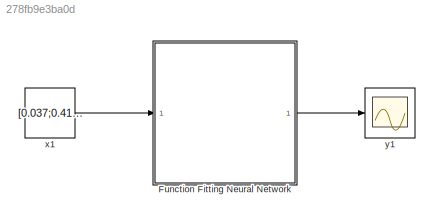
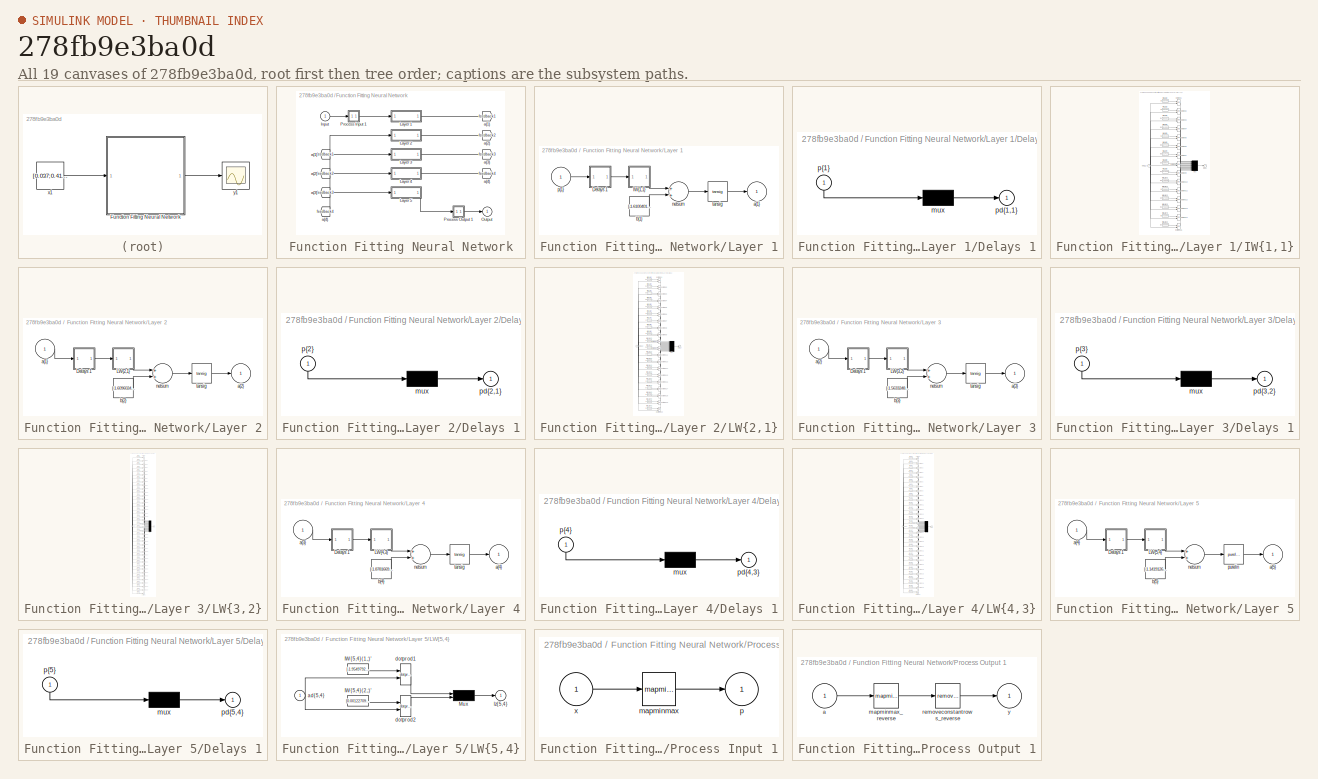
[diagram: thumbnail index - all 19 canvases of the model, root first then tree order]
MODEL slx_278fb9e3ba0d
KIND model
CONFIG AbsTol = auto
CONFIG EnableMultiTasking = off
CONFIG FixedStep = auto
CONFIG MaxStep = auto
CONFIG MinStep = auto
CONFIG RelTol = 1e-3
CONFIG SampleTimeConstraint = Unconstrained
CONFIG Solver = VariableStepAuto
CONFIG SolverName = VariableStepAuto
CONFIG StartTime = 0.0
CONFIG StopTime = 10.0
BLOCK [SubSystem] Function Fitting Neural Network
  Ports = [1, 1]
  RequestExecContextInheritance = off
BLOCK [From] Function Fitting Neural Network/ a{1} 
  GotoTag = feedback1
BLOCK [From] Function Fitting Neural Network/ a{2} 
  GotoTag = feedback2
BLOCK [From] Function Fitting Neural Network/ a{3} 
  GotoTag = feedback3
BLOCK [From] Function Fitting Neural Network/ a{4} 
  GotoTag = feedback4
BLOCK [Inport] Function Fitting Neural Network/Input
  IconDisplay = Port number
  PortDimensions = 7
BLOCK [SubSystem] Function Fitting Neural Network/Layer 1
  Ports = [1, 1]
  RequestExecContextInheritance = off
BLOCK [SubSystem] Function Fitting Neural Network/Layer 1/Delays 1
  Ports = [1, 1]
  RequestExecContextInheritance = off
BLOCK [Mux] Function Fitting Neural Network/Layer 1/Delays 1/mux
  Inputs = 1
  Ports = [1, 1]
BLOCK [Outport] Function Fitting Neural Network/Layer 1/Delays 1/pd{1,1}
  IconDisplay = Port number
BLOCK [Inport] Function Fitting Neural Network/Layer 1/Delays 1/p{1}
  IconDisplay = Port number
  PortDimensions = 7
BLOCK [SubSystem] Function Fitting Neural Network/Layer 1/IW{1,1}
  Ports = [1, 1]
  RequestExecContextInheritance = off
BLOCK [Constant] Function Fitting Neural Network/Layer 1/IW{1,1}/IW{1,1}(1,:)'
  Value = [-1.509049673932340684956443510600365698337554931640625;1.51927734183694784775298103340901434421539306640625;1.479181269120346531309451165725477039813995361328125;0.76292036319028133650732570458785630762577056884765625;-1.4000753923386464183664656957262195646762847900390625;1.516189767355066830845089498325251042842864990234375;-0.6979172108090470061370069743134081363677978515625]
BLOCK [Constant] Function Fitting Neural Network/Layer 1/IW{1,1}/IW{1,1}(10,:)'
  Value = [0.67756364497310739292146308798692189157009124755859375;0.04182033064572175662387820693766116164624691009521484375;-0.4504897562480543182772407817537896335124969482421875;-2.551876443899323110287014060304500162601470947265625;0.18672185850221978409280154664884321391582489013671875;1.7325835923135628480196146483649499714374542236328125;0.289998821125625971806272218600497581064701080322265625]
BLOCK [Constant] Function Fitting Neural Network/Layer 1/IW{1,1}/IW{1,1}(11,:)'
  Value = [-1.2288862245678371376556015093228779733180999755859375;-0.70363000734339908870396129714208655059337615966796875;-1.5288499399296260339298214603331871330738067626953125;-1.1174320519343565738523693653405643999576568603515625;1.6750447749892007909267022114363498985767364501953125;-2.4972953199852252481605319189839065074920654296875;0.70182493954114166800906104981550015509128570556640625]
BLOCK [Constant] Function Fitting Neural Network/Layer 1/IW{1,1}/IW{1,1}(12,:)'
  Value = [1.9657399498320062836143051754334010183811187744140625;0.055469671143939518198617832922536763362586498260498046875;0.428893001178795640893071094978949986398220062255859375;0.83038703202997699026610689543304033577442169189453125;0.6528646345537374440226585647906176745891571044921875;-1.7892558675957606073581018790719099342823028564453125;-1.87816849195586765830512376851402223110198974609375]
BLOCK [Constant] Function Fitting Neural Network/Layer 1/IW{1,1}/IW{1,1}(13,:)'
  Value = [0.027553849311181564940564925336730084381997585296630859375;0.165556284993658930915216842549853026866912841796875;1.0787466889472050457499108233605511486530303955078125;-1.89957440383020159657689873711206018924713134765625;0.54115146920791890039481586427427828311920166015625;-1.653817387983281150809489190578460693359375;1.1876738967274527158934915860299952328205108642578125]
BLOCK [Constant] Function Fitting Neural Network/Layer 1/IW{1,1}/IW{1,1}(14,:)'
  Value = [-0.873258402827774116161663187085650861263275146484375;2.211312160674173465935155036277137696743011474609375;-2.483318885241498463756215642206370830535888671875;2.537018816534186260724936801125295460224151611328125;2.2595527875997465372392980498261749744415283203125;-4.12440023174638614733567010262049734592437744140625;2.3447201728720248325998909422196447849273681640625]
BLOCK [Constant] Function Fitting Neural Network/Layer 1/IW{1,1}/IW{1,1}(15,:)'
  Value = [2.08666569584865957409647307940758764743804931640625;-0.80442585468800620329687944831675849854946136474609375;-0.379133263113434482161068217465071938931941986083984375;-0.2375698497917715368288327226764522492885589599609375;0.10421540704451726089274643527460284531116485595703125;-0.77514844988269893111265673724119551479816436767578125;0.3039233762085336021385728599852882325649261474609375]
BLOCK [Constant] Function Fitting Neural Network/Layer 1/IW{1,1}/IW{1,1}(2,:)'
  Value = [-1.22803813723280175196350683108903467655181884765625;-2.25896918882737285372286351048387587070465087890625;-0.4219079312453886121403456854750402271747589111328125;-1.695805476122420163420656535890884697437286376953125;1.6764860652005861840763145664823241531848907470703125;-0.288104929415635313549870488714077509939670562744140625;1.1836646212486352514048348893993534147739410400390625]
BLOCK [Constant] Function Fitting Neural Network/Layer 1/IW{1,1}/IW{1,1}(3,:)'
  Value = [0.17521371396843898882167422925704158842563629150390625;-1.5068324243738988599261574563570320606231689453125;-0.339896798386482734688485152219072915613651275634765625;1.2475380308633063908274607456405647099018096923828125;3.277106824369047100020679863519035279750823974609375;0.1745122092133344626763147289238986559212207794189453125;-2.210738215368686088169170034234412014484405517578125]
BLOCK [Constant] Function Fitting Neural Network/Layer 1/IW{1,1}/IW{1,1}(4,:)'
  Value = [0.295155289995136682623666501967818476259708404541015625;0.54169014463003517523276286738109774887561798095703125;-0.81923187750457915345947412788518704473972320556640625;-1.413502828991773707656420810963027179241180419921875;0.7249327311390978412219965321128256618976593017578125;0.25822608938690316815467440392239950597286224365234375;3.05246104088644099050497970893047749996185302734375]
BLOCK [Constant] Function Fitting Neural Network/Layer 1/IW{1,1}/IW{1,1}(5,:)'
  Value = [-1.253615022589892991078386330627836287021636962890625;-1.308178888292455877007114395382814109325408935546875;-0.55746399823290404551556775913923047482967376708984375;2.888853599694045204415715488721616566181182861328125;0.67366408192522564402082707601948641240596771240234375;1.7511351672237738252846384057193063199520111083984375;-0.550561400887894958344759288593195378780364990234375]
BLOCK [Constant] Function Fitting Neural Network/Layer 1/IW{1,1}/IW{1,1}(6,:)'
  Value = [0.968443097846008793538885583984665572643280029296875;-1.02085143200877492830613846308551728725433349609375;-2.7100181628849835391292799613438546657562255859375;-1.469426684764355339751773499301634728908538818359375;-0.72093283243393291304101921923574991524219512939453125;0.0298446565267905077056820317693563993088901042938232421875;0.2776436857395701007789057257468812167644500732421875]
BLOCK [Constant] Function Fitting Neural Network/Layer 1/IW{1,1}/IW{1,1}(7,:)'
  Value = [0.83114107039691231815226046819589100778102874755859375;-1.653778663789594371991142907063476741313934326171875;1.7070538673297175336074360529892146587371826171875;-0.467894735272818274030015572861884720623493194580078125;-1.4874423762862181153110441300668753683567047119140625;0.1529353896317520999925676505881710909307003021240234375;-0.51792644395898801423783197606098838150501251220703125]
BLOCK [Constant] Function Fitting Neural Network/Layer 1/IW{1,1}/IW{1,1}(8,:)'
  Value = [1.5608537746191044615073906243196688592433929443359375;0.8208342730039908108352619819925166666507720947265625;1.70216863375625049314976422465406358242034912109375;-0.95886390034983914887334321974776685237884521484375;3.42297237946134469410708334180526435375213623046875;0.6162829570883274765691339780460111796855926513671875;3.2692680483829601456591262831352651119232177734375]
BLOCK [Constant] Function Fitting Neural Network/Layer 1/IW{1,1}/IW{1,1}(9,:)'
  Value = [1.3237529323020209570671568144462071359157562255859375;-0.44844324720964079400431501198909245431423187255859375;-3.795885956504914116038662541541270911693572998046875;-1.1322778939762268013424773016595281660556793212890625;-0.50600361676503669006166319377371110022068023681640625;-1.3597783903850106934640962208504788577556610107421875;-1.599955115091173496466581127606332302093505859375]
BLOCK [Mux] Function Fitting Neural Network/Layer 1/IW{1,1}/Mux
  Inputs = 15
  Ports = [15, 1]
BLOCK [Reference] Function Fitting Neural Network/Layer 1/IW{1,1}/dotprod1  REF=neural/Weight Functions/dotprod
  Ports = [2, 1]
  SourceBlock = neural/Weight Functions/dotprod
  SourceProductBaseCode = NN
  SourceProductName = Neural Network Toolbox
  SourceType = DOTPROD
BLOCK [Reference] Function Fitting Neural Network/Layer 1/IW{1,1}/dotprod10  REF=neural/Weight Functions/dotprod
  Ports = [2, 1]
  SourceBlock = neural/Weight Functions/dotprod
  SourceProductBaseCode = NN
  SourceProductName = Neural Network Toolbox
  SourceType = DOTPROD
BLOCK [Reference] Function Fitting Neural Network/Layer 1/IW{1,1}/dotprod11  REF=neural/Weight Functions/dotprod
  Ports = [2, 1]
  SourceBlock = neural/Weight Functions/dotprod
  SourceProductBaseCode = NN
  SourceProductName = Neural Network Toolbox
  SourceType = DOTPROD
BLOCK [Reference] Function Fitting Neural Network/Layer 1/IW{1,1}/dotprod12  REF=neural/Weight Functions/dotprod
  Ports = [2, 1]
  SourceBlock = neural/Weight Functions/dotprod
  SourceProductBaseCode = NN
  SourceProductName = Neural Network Toolbox
  SourceType = DOTPROD
BLOCK [Reference] Function Fitting Neural Network/Layer 1/IW{1,1}/dotprod13  REF=neural/Weight Functions/dotprod
  Ports = [2, 1]
  SourceBlock = neural/Weight Functions/dotprod
  SourceProductBaseCode = NN
  SourceProductName = Neural Network Toolbox
  SourceType = DOTPROD
BLOCK [Reference] Function Fitting Neural Network/Layer 1/IW{1,1}/dotprod14  REF=neural/Weight Functions/dotprod
  Ports = [2, 1]
  SourceBlock = neural/Weight Functions/dotprod
  SourceProductBaseCode = NN
  SourceProductName = Neural Network Toolbox
  SourceType = DOTPROD
BLOCK [Reference] Function Fitting Neural Network/Layer 1/IW{1,1}/dotprod15  REF=neural/Weight Functions/dotprod
  Ports = [2, 1]
  SourceBlock = neural/Weight Functions/dotprod
  SourceProductBaseCode = NN
  SourceProductName = Neural Network Toolbox
  SourceType = DOTPROD
BLOCK [Reference] Function Fitting Neural Network/Layer 1/IW{1,1}/dotprod2  REF=neural/Weight Functions/dotprod
  Ports = [2, 1]
  SourceBlock = neural/Weight Functions/dotprod
  SourceProductBaseCode = NN
  SourceProductName = Neural Network Toolbox
  SourceType = DOTPROD
BLOCK [Reference] Function Fitting Neural Network/Layer 1/IW{1,1}/dotprod3  REF=neural/Weight Functions/dotprod
  Ports = [2, 1]
  SourceBlock = neural/Weight Functions/dotprod
  SourceProductBaseCode = NN
  SourceProductName = Neural Network Toolbox
  SourceType = DOTPROD
BLOCK [Reference] Function Fitting Neural Network/Layer 1/IW{1,1}/dotprod4  REF=neural/Weight Functions/dotprod
  Ports = [2, 1]
  SourceBlock = neural/Weight Functions/dotprod
  SourceProductBaseCode = NN
  SourceProductName = Neural Network Toolbox
  SourceType = DOTPROD
BLOCK [Reference] Function Fitting Neural Network/Layer 1/IW{1,1}/dotprod5  REF=neural/Weight Functions/dotprod
  Ports = [2, 1]
  SourceBlock = neural/Weight Functions/dotprod
  SourceProductBaseCode = NN
  SourceProductName = Neural Network Toolbox
  SourceType = DOTPROD
BLOCK [Reference] Function Fitting Neural Network/Layer 1/IW{1,1}/dotprod6  REF=neural/Weight Functions/dotprod
  Ports = [2, 1]
  SourceBlock = neural/Weight Functions/dotprod
  SourceProductBaseCode = NN
  SourceProductName = Neural Network Toolbox
  SourceType = DOTPROD
BLOCK [Reference] Function Fitting Neural Network/Layer 1/IW{1,1}/dotprod7  REF=neural/Weight Functions/dotprod
  Ports = [2, 1]
  SourceBlock = neural/Weight Functions/dotprod
  SourceProductBaseCode = NN
  SourceProductName = Neural Network Toolbox
  SourceType = DOTPROD
BLOCK [Reference] Function Fitting Neural Network/Layer 1/IW{1,1}/dotprod8  REF=neural/Weight Functions/dotprod
  Ports = [2, 1]
  SourceBlock = neural/Weight Functions/dotprod
  SourceProductBaseCode = NN
  SourceProductName = Neural Network Toolbox
  SourceType = DOTPROD
BLOCK [Reference] Function Fitting Neural Network/Layer 1/IW{1,1}/dotprod9  REF=neural/Weight Functions/dotprod
  Ports = [2, 1]
  SourceBlock = neural/Weight Functions/dotprod
  SourceProductBaseCode = NN
  SourceProductName = Neural Network Toolbox
  SourceType = DOTPROD
BLOCK [Outport] Function Fitting Neural Network/Layer 1/IW{1,1}/iz{1,1}
  IconDisplay = Port number
BLOCK [Inport] Function Fitting Neural Network/Layer 1/IW{1,1}/pd{1,1}
  IconDisplay = Port number
  PortDimensions = 7
BLOCK [Outport] Function Fitting Neural Network/Layer 1/a{1}
  IconDisplay = Port number
  InitialOutput = [0;0;0;0;0;0;0;0;0;0;0;0;0;0;0]
BLOCK [Constant] Function Fitting Neural Network/Layer 1/b{1}
  Value = [-1.610040133341235968345017681713216006755828857421875;2.933706504967549921758518394199199974536895751953125;-1.42382437957278273898964471300132572650909423828125;-1.4570885099023058728562318719923496246337890625;-0.0288066645531489910758704553472853149287402629852294921875;-0.1701354696492190787804332785526639781892299652099609375;-0.70923136241727580131311015065875835716724395751953125;1.604187...<+430ch>
BLOCK [Sum] Function Fitting Neural Network/Layer 1/netsum
  Inputs = 2
  Ports = [2, 1]
BLOCK [Inport] Function Fitting Neural Network/Layer 1/p{1}
  IconDisplay = Port number
  PortDimensions = 7
BLOCK [Reference] Function Fitting Neural Network/Layer 1/tansig  REF=neural/Transfer Functions/tansig
  Ports = [1, 1]
  SourceBlock = neural/Transfer Functions/tansig
  SourceProductBaseCode = NN
  SourceProductName = Neural Network Toolbox
  SourceType = TANSIG
BLOCK [SubSystem] Function Fitting Neural Network/Layer 2
  Ports = [1, 1]
  RequestExecContextInheritance = off
BLOCK [SubSystem] Function Fitting Neural Network/Layer 2/Delays 1
  Ports = [1, 1]
  RequestExecContextInheritance = off
BLOCK [Mux] Function Fitting Neural Network/Layer 2/Delays 1/mux
  Inputs = 1
  Ports = [1, 1]
BLOCK [Outport] Function Fitting Neural Network/Layer 2/Delays 1/pd{2,1}
  IconDisplay = Port number
BLOCK [Inport] Function Fitting Neural Network/Layer 2/Delays 1/p{2}
  IconDisplay = Port number
  PortDimensions = 15
BLOCK [SubSystem] Function Fitting Neural Network/Layer 2/LW{2,1}
  Ports = [1, 1]
  RequestExecContextInheritance = off
BLOCK [Constant] Function Fitting Neural Network/Layer 2/LW{2,1}/IW{2,1}(1,:)'
  Value = [0.377408986567094262287724859561421908438205718994140625;0.916935828034818545262396582984365522861480712890625;0.393088948975864271861979659661301411688327789306640625;-0.6492111185444693344237521159811876714229583740234375;-0.203739226760496883184003991118515841662883758544921875;-0.1100086759278134651562908175037591718137264251708984375;0.351124696378162237664355416200123727321624755859375;0.54...<+447ch>
BLOCK [Constant] Function Fitting Neural Network/Layer 2/LW{2,1}/IW{2,1}(10,:)'
  Value = [-0.74203606234167496236153738209395669400691986083984375;-0.812696026932474335779943430679850280284881591796875;-0.6131789681735482222535438268096186220645904541015625;0.1180891377801421004978266182661172933876514434814453125;0.397427019878926424123477545435889624059200286865234375;2.659200302624636691462001181207597255706787109375;0.8379336594029853646503624986507929861545562744140625;-0.5126291...<+437ch>
BLOCK [Constant] Function Fitting Neural Network/Layer 2/LW{2,1}/IW{2,1}(11,:)'
  Value = [0.3533629692989530557412081179791130125522613525390625;-0.81541740940325035946756315752281807363033294677734375;-2.0683095123156203243297568405978381633758544921875;0.35160466105935561653694776396150700747966766357421875;0.47449346143949344689616509640472941100597381591796875;1.85236410264457074248412027372978627681732177734375;-0.81173488668558591019319692350109107792377471923828125;-0.865534123...<+443ch>
BLOCK [Constant] Function Fitting Neural Network/Layer 2/LW{2,1}/IW{2,1}(12,:)'
  Value = [1.0494579345300130146512174178496934473514556884765625;1.3044889644552188912030032952316105365753173828125;-0.27106298353604463269306279471493326127529144287109375;-0.1915871026849610692099901143592433072626590728759765625;-0.34760653690221354761291649992926977574825286865234375;0.52037978849581134621615774449310265481472015380859375;-0.2321169942446153766635319470879039727151393890380859375;0.33...<+430ch>
BLOCK [Constant] Function Fitting Neural Network/Layer 2/LW{2,1}/IW{2,1}(13,:)'
  Value = [-1.344327771042938213241768607986159622669219970703125;-0.349408651716258733532782798647531308233737945556640625;-0.390264497355393424893321707713766954839229583740234375;0.126088036555836335850244722678326070308685302734375;-2.274693199742918725547724534408189356327056884765625;0.91296441439649156368574267617077566683292388916015625;-0.68148198466500409242740943227545358240604400634765625;1.2270...<+431ch>
BLOCK [Constant] Function Fitting Neural Network/Layer 2/LW{2,1}/IW{2,1}(14,:)'
  Value = [-0.29853848744158828498740376744535751640796661376953125;1.1233511551870878353298621732392348349094390869140625;-2.07527020696446840020144009031355381011962890625;-1.935997401690873420676552996155805885791778564453125;-1.6993223712170613115546302651637233793735504150390625;1.3212505337032693919496750822872854769229888916015625;0.7734893293394142776975286324159242212772369384765625;2.9730966112839...<+413ch>
BLOCK [Constant] Function Fitting Neural Network/Layer 2/LW{2,1}/IW{2,1}(15,:)'
  Value = [1.0345820450408365065442239938420243561267852783203125;0.170053385086431474437773658792139030992984771728515625;0.425304751501224875820383886093623004853725433349609375;1.7849387921699018111354462234885431826114654541015625;0.058793108846872381423320774729290860705077648162841796875;-0.687600743270277536822732145083136856555938720703125;1.0963569888999680213004239703877829015254974365234375;1.229...<+445ch>
BLOCK [Constant] Function Fitting Neural Network/Layer 2/LW{2,1}/IW{2,1}(16,:)'
  Value = [-0.54498499369304098660649060548166744410991668701171875;0.6799088542563989090439235951635055243968963623046875;-0.59241245747564919010841322233318351209163665771484375;0.384464409586843858246396621325402520596981048583984375;0.0893006313696689535408523852311191149055957794189453125;1.07254602817469635311908859875984489917755126953125;-0.11425203906562857170126079608962754718959331512451171875;0....<+450ch>
BLOCK [Constant] Function Fitting Neural Network/Layer 2/LW{2,1}/IW{2,1}(17,:)'
  Value = [0.79632901656177512705880872090347111225128173828125;-0.43876079818712165891980703236185945570468902587890625;0.5548335307676006689092673695995472371578216552734375;-0.55849152574337879162413855738122947514057159423828125;-0.461844332172288318805186690951813943684101104736328125;-0.427115163073199521903688946622423827648162841796875;1.311178922459931062149962599505670368671417236328125;-1.1444708...<+437ch>
BLOCK [Constant] Function Fitting Neural Network/Layer 2/LW{2,1}/IW{2,1}(18,:)'
  Value = [-0.48414029369150057835469169731368310749530792236328125;0.2455425835334756612393647401404450647532939910888671875;2.175669169808506442365114708081819117069244384765625;-0.0169383857920981963085527155499221407808363437652587890625;1.7643193485798673858511165235540829598903656005859375;-0.1898086105258787181782054176437668502330780029296875;-0.33303470605840612694947822092217393219470977783203125;...<+450ch>
BLOCK [Constant] Function Fitting Neural Network/Layer 2/LW{2,1}/IW{2,1}(19,:)'
  Value = [-1.638090985101666507972595354658551514148712158203125;0.480827709429096028515004945802502334117889404296875;-1.4851154730728117758786765989498235285282135009765625;-0.9734283236699454722185009813983924686908721923828125;-0.21534839284540729931194391610915772616863250732421875;-0.94935571166668319964543343303375877439975738525390625;2.109650740065902585484991504927165806293487548828125;0.87464202...<+442ch>
BLOCK [Constant] Function Fitting Neural Network/Layer 2/LW{2,1}/IW{2,1}(2,:)'
  Value = [0.1469761547003029800162465789981069974601268768310546875;-0.578701316419981903749203411280177533626556396484375;0.341452645103678176230488361397874541580677032470703125;0.2386095773885203163988677488305256702005863189697265625;-0.36337242315637852119181161469896323978900909423828125;0.3665880503615490670910048720543272793292999267578125;-0.05470033317565676372895566714760207105427980422973632812...<+454ch>
BLOCK [Constant] Function Fitting Neural Network/Layer 2/LW{2,1}/IW{2,1}(20,:)'
  Value = [-0.60289804749850628429186372159165330231189727783203125;1.7330062937538868172993034022510983049869537353515625;1.573776484323565316714166328893043100833892822265625;0.2201108814813907688101579651629435829818248748779296875;-0.1919165645051046642510783613033709116280078887939453125;-1.547054173232626173017933979281224310398101806640625;-0.2912781093635989915213713175035081803798675537109375;2.680...<+433ch>
BLOCK [Constant] Function Fitting Neural Network/Layer 2/LW{2,1}/IW{2,1}(3,:)'
  Value = [0.50517179216705832001110820783651433885097503662109375;-0.59919078994797303483466066609253175556659698486328125;1.17889739811014404580191694549284875392913818359375;-0.004188677321987861745800074686485459096729755401611328125;1.0604996761056650900201248077792115509510040283203125;2.29707854769621544477331553935073316097259521484375;-1.0923530737408351232176073608570732176303863525390625;-1.32913...<+432ch>
BLOCK [Constant] Function Fitting Neural Network/Layer 2/LW{2,1}/IW{2,1}(4,:)'
  Value = [0.5505222236012532466276070408639498054981231689453125;1.951703456007682913053713491535745561122894287109375;-0.9897527108084924751807420761906541883945465087890625;0.89755279697985679288052551783039234578609466552734375;-0.324574947928065460356350513393408618867397308349609375;0.5752534850846224845355436627869494259357452392578125;1.3135611127646946716396314513985998928546905517578125;-0.9502825...<+439ch>
BLOCK [Constant] Function Fitting Neural Network/Layer 2/LW{2,1}/IW{2,1}(5,:)'
  Value = [1.214926144670938956693362342775799334049224853515625;-0.589383392185145904562659779912792146205902099609375;1.222907349879617466825720839551649987697601318359375;-0.165693908486424401615977330948226153850555419921875;2.380733171177626505965463366010226309299468994140625;1.0699740607363887878733521574758924543857574462890625;-0.8153826367841781053158456415985710918903350830078125;-1.9460877858361...<+425ch>
BLOCK [Constant] Function Fitting Neural Network/Layer 2/LW{2,1}/IW{2,1}(6,:)'
  Value = [-0.89026283402007511114106819150038063526153564453125;-2.1276489961269913209207516047172248363494873046875;-0.718725775341054085032510556629858911037445068359375;-1.4049413007122077967636641915305517613887786865234375;2.126218402185191980180434256908483803272247314453125;0.52509099498448141840611924635595642030239105224609375;-0.2171988856466122996824452684450079686939716339111328125;0.1142472625...<+444ch>
BLOCK [Constant] Function Fitting Neural Network/Layer 2/LW{2,1}/IW{2,1}(7,:)'
  Value = [-0.15724040048056597829173597347107715904712677001953125;-1.05278750497809081565492306253872811794281005859375;0.9040750931625753938902789741405285894870758056640625;0.94070892345154033531429149661562405526638031005859375;-0.46009379460067967304581770804361440241336822509765625;-1.23031803174596721106581753701902925968170166015625;-0.8300200073230570296800578944385051727294921875;0.30222093966344...<+427ch>
BLOCK [Constant] Function Fitting Neural Network/Layer 2/LW{2,1}/IW{2,1}(8,:)'
  Value = [0.945024960415079107178826234303414821624755859375;-0.294075471019162149044490206506452523171901702880859375;-0.7029985120569912648846866431995294988155364990234375;-0.062855179229177438049447346202214248478412628173828125;-0.446927348752318265301397559596807695925235748291015625;-0.2162056312035481042688189745604177005589008331298828125;-0.861414220128228880213328011450357735157012939453125;0.24...<+447ch>
BLOCK [Constant] Function Fitting Neural Network/Layer 2/LW{2,1}/IW{2,1}(9,:)'
  Value = [-0.5106940090357865447145968573749996721744537353515625;1.0882240534587903635355132792028598487377166748046875;-0.5668936775342794387455569449230097234249114990234375;-0.6211555230864871379736769085866399109363555908203125;-0.1736481411168747379658583440686925314366817474365234375;0.57637365312470334455241527393809519708156585693359375;-0.36364059015678418251837911157053895294666290283203125;2.06...<+434ch>
BLOCK [Mux] Function Fitting Neural Network/Layer 2/LW{2,1}/Mux
  Inputs = 20
  Ports = [20, 1]
BLOCK [Inport] Function Fitting Neural Network/Layer 2/LW{2,1}/ad{2,1}
  IconDisplay = Port number
  PortDimensions = 15
BLOCK [Reference] Function Fitting Neural Network/Layer 2/LW{2,1}/dotprod1  REF=neural/Weight Functions/dotprod
  Ports = [2, 1]
  SourceBlock = neural/Weight Functions/dotprod
  SourceProductBaseCode = NN
  SourceProductName = Neural Network Toolbox
  SourceType = DOTPROD
BLOCK [Reference] Function Fitting Neural Network/Layer 2/LW{2,1}/dotprod10  REF=neural/Weight Functions/dotprod
  Ports = [2, 1]
  SourceBlock = neural/Weight Functions/dotprod
  SourceProductBaseCode = NN
  SourceProductName = Neural Network Toolbox
  SourceType = DOTPROD
BLOCK [Reference] Function Fitting Neural Network/Layer 2/LW{2,1}/dotprod11  REF=neural/Weight Functions/dotprod
  Ports = [2, 1]
  SourceBlock = neural/Weight Functions/dotprod
  SourceProductBaseCode = NN
  SourceProductName = Neural Network Toolbox
  SourceType = DOTPROD
BLOCK [Reference] Function Fitting Neural Network/Layer 2/LW{2,1}/dotprod12  REF=neural/Weight Functions/dotprod
  Ports = [2, 1]
  SourceBlock = neural/Weight Functions/dotprod
  SourceProductBaseCode = NN
  SourceProductName = Neural Network Toolbox
  SourceType = DOTPROD
BLOCK [Reference] Function Fitting Neural Network/Layer 2/LW{2,1}/dotprod13  REF=neural/Weight Functions/dotprod
  Ports = [2, 1]
  SourceBlock = neural/Weight Functions/dotprod
  SourceProductBaseCode = NN
  SourceProductName = Neural Network Toolbox
  SourceType = DOTPROD
BLOCK [Reference] Function Fitting Neural Network/Layer 2/LW{2,1}/dotprod14  REF=neural/Weight Functions/dotprod
  Ports = [2, 1]
  SourceBlock = neural/Weight Functions/dotprod
  SourceProductBaseCode = NN
  SourceProductName = Neural Network Toolbox
  SourceType = DOTPROD
BLOCK [Reference] Function Fitting Neural Network/Layer 2/LW{2,1}/dotprod15  REF=neural/Weight Functions/dotprod
  Ports = [2, 1]
  SourceBlock = neural/Weight Functions/dotprod
  SourceProductBaseCode = NN
  SourceProductName = Neural Network Toolbox
  SourceType = DOTPROD
BLOCK [Reference] Function Fitting Neural Network/Layer 2/LW{2,1}/dotprod16  REF=neural/Weight Functions/dotprod
  Ports = [2, 1]
  SourceBlock = neural/Weight Functions/dotprod
  SourceProductBaseCode = NN
  SourceProductName = Neural Network Toolbox
  SourceType = DOTPROD
BLOCK [Reference] Function Fitting Neural Network/Layer 2/LW{2,1}/dotprod17  REF=neural/Weight Functions/dotprod
  Ports = [2, 1]
  SourceBlock = neural/Weight Functions/dotprod
  SourceProductBaseCode = NN
  SourceProductName = Neural Network Toolbox
  SourceType = DOTPROD
BLOCK [Reference] Function Fitting Neural Network/Layer 2/LW{2,1}/dotprod18  REF=neural/Weight Functions/dotprod
  Ports = [2, 1]
  SourceBlock = neural/Weight Functions/dotprod
  SourceProductBaseCode = NN
  SourceProductName = Neural Network Toolbox
  SourceType = DOTPROD
BLOCK [Reference] Function Fitting Neural Network/Layer 2/LW{2,1}/dotprod19  REF=neural/Weight Functions/dotprod
  Ports = [2, 1]
  SourceBlock = neural/Weight Functions/dotprod
  SourceProductBaseCode = NN
  SourceProductName = Neural Network Toolbox
  SourceType = DOTPROD
BLOCK [Reference] Function Fitting Neural Network/Layer 2/LW{2,1}/dotprod2  REF=neural/Weight Functions/dotprod
  Ports = [2, 1]
  SourceBlock = neural/Weight Functions/dotprod
  SourceProductBaseCode = NN
  SourceProductName = Neural Network Toolbox
  SourceType = DOTPROD
BLOCK [Reference] Function Fitting Neural Network/Layer 2/LW{2,1}/dotprod20  REF=neural/Weight Functions/dotprod
  Ports = [2, 1]
  SourceBlock = neural/Weight Functions/dotprod
  SourceProductBaseCode = NN
  SourceProductName = Neural Network Toolbox
  SourceType = DOTPROD
BLOCK [Reference] Function Fitting Neural Network/Layer 2/LW{2,1}/dotprod3  REF=neural/Weight Functions/dotprod
  Ports = [2, 1]
  SourceBlock = neural/Weight Functions/dotprod
  SourceProductBaseCode = NN
  SourceProductName = Neural Network Toolbox
  SourceType = DOTPROD
BLOCK [Reference] Function Fitting Neural Network/Layer 2/LW{2,1}/dotprod4  REF=neural/Weight Functions/dotprod
  Ports = [2, 1]
  SourceBlock = neural/Weight Functions/dotprod
  SourceProductBaseCode = NN
  SourceProductName = Neural Network Toolbox
  SourceType = DOTPROD
BLOCK [Reference] Function Fitting Neural Network/Layer 2/LW{2,1}/dotprod5  REF=neural/Weight Functions/dotprod
  Ports = [2, 1]
  SourceBlock = neural/Weight Functions/dotprod
  SourceProductBaseCode = NN
  SourceProductName = Neural Network Toolbox
  SourceType = DOTPROD
BLOCK [Reference] Function Fitting Neural Network/Layer 2/LW{2,1}/dotprod6  REF=neural/Weight Functions/dotprod
  Ports = [2, 1]
  SourceBlock = neural/Weight Functions/dotprod
  SourceProductBaseCode = NN
  SourceProductName = Neural Network Toolbox
  SourceType = DOTPROD
BLOCK [Reference] Function Fitting Neural Network/Layer 2/LW{2,1}/dotprod7  REF=neural/Weight Functions/dotprod
  Ports = [2, 1]
  SourceBlock = neural/Weight Functions/dotprod
  SourceProductBaseCode = NN
  SourceProductName = Neural Network Toolbox
  SourceType = DOTPROD
BLOCK [Reference] Function Fitting Neural Network/Layer 2/LW{2,1}/dotprod8  REF=neural/Weight Functions/dotprod
  Ports = [2, 1]
  SourceBlock = neural/Weight Functions/dotprod
  SourceProductBaseCode = NN
  SourceProductName = Neural Network Toolbox
  SourceType = DOTPROD
BLOCK [Reference] Function Fitting Neural Network/Layer 2/LW{2,1}/dotprod9  REF=neural/Weight Functions/dotprod
  Ports = [2, 1]
  SourceBlock = neural/Weight Functions/dotprod
  SourceProductBaseCode = NN
  SourceProductName = Neural Network Toolbox
  SourceType = DOTPROD
BLOCK [Outport] Function Fitting Neural Network/Layer 2/LW{2,1}/lz{2,1}
  IconDisplay = Port number
BLOCK [Inport] Function Fitting Neural Network/Layer 2/a{1} 
  IconDisplay = Port number
  PortDimensions = 15
BLOCK [Outport] Function Fitting Neural Network/Layer 2/a{2}
  IconDisplay = Port number
  InitialOutput = [0;0;0;0;0;0;0;0;0;0;0;0;0;0;0;0;0;0;0;0]
BLOCK [Constant] Function Fitting Neural Network/Layer 2/b{2}
  Value = [-1.6096024163797573169887300537084229290485382080078125;-1.65354764887041394416655748500488698482513427734375;-1.2914782583697201889805228347540833055973052978515625;-0.72315662509744094155195170969818718731403350830078125;-0.99306137128749594200627370810252614319324493408203125;0.155765590647604479368482088830205611884593963623046875;-0.74979936876206332296845857854350470006465911865234375;-0.34...<+716ch>
BLOCK [Sum] Function Fitting Neural Network/Layer 2/netsum
  Inputs = 2
  Ports = [2, 1]
BLOCK [Reference] Function Fitting Neural Network/Layer 2/tansig  REF=neural/Transfer Functions/tansig
  Ports = [1, 1]
  SourceBlock = neural/Transfer Functions/tansig
  SourceProductBaseCode = NN
  SourceProductName = Neural Network Toolbox
  SourceType = TANSIG
BLOCK [SubSystem] Function Fitting Neural Network/Layer 3
  Ports = [1, 1]
  RequestExecContextInheritance = off
BLOCK [SubSystem] Function Fitting Neural Network/Layer 3/Delays 1
  Ports = [1, 1]
  RequestExecContextInheritance = off
BLOCK [Mux] Function Fitting Neural Network/Layer 3/Delays 1/mux
  Inputs = 1
  Ports = [1, 1]
BLOCK [Outport] Function Fitting Neural Network/Layer 3/Delays 1/pd{3,2}
  IconDisplay = Port number
BLOCK [Inport] Function Fitting Neural Network/Layer 3/Delays 1/p{3}
  IconDisplay = Port number
  PortDimensions = 20
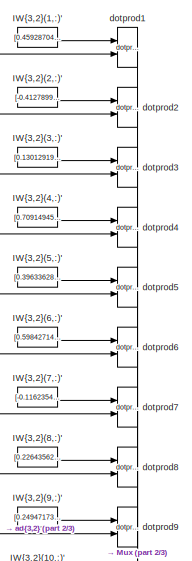
[diagram: Function Fitting Neural Network/Layer 3/LW{3,2} - part 1/3, top center region]
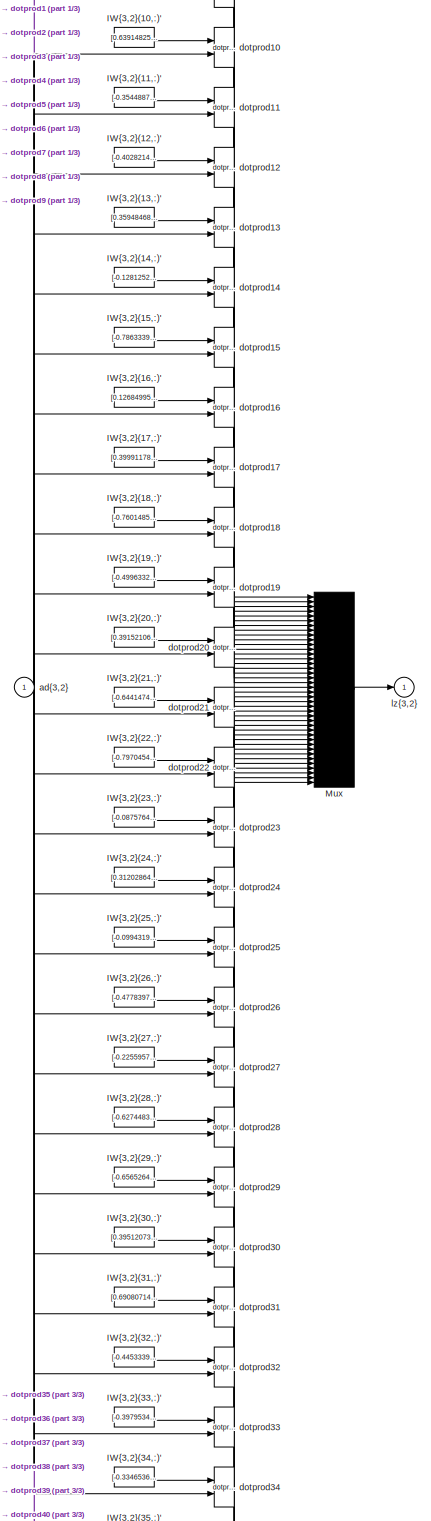
[diagram: Function Fitting Neural Network/Layer 3/LW{3,2} - part 2/3, full width, middle band]
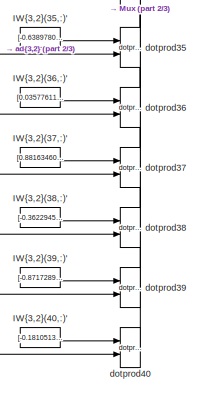
[diagram: Function Fitting Neural Network/Layer 3/LW{3,2} - part 3/3, bottom center region]
BLOCK [SubSystem] Function Fitting Neural Network/Layer 3/LW{3,2}
  Ports = [1, 1]
  RequestExecContextInheritance = off
BLOCK [Constant] Function Fitting Neural Network/Layer 3/LW{3,2}/IW{3,2}(1,:)'
  Value = [0.459287043793126958934891490571317262947559356689453125;0.15158328644517726768725651709246449172496795654296875;0.23487400964615912091204563694191165268421173095703125;0.49842805165434123093604057430638931691646575927734375;0.306723763332942434001182618885650299489498138427734375;-0.449370510355304342287041663439595140516757965087890625;-0.69490951822691882089344517225981689989566802978515625;-0...<+737ch>
BLOCK [Constant] Function Fitting Neural Network/Layer 3/LW{3,2}/IW{3,2}(10,:)'
  Value = [0.6391482548086118153918278039782308042049407958984375;-0.43853273482522980852849059374420903623104095458984375;1.4163636685373186541170298369252122938632965087890625;-0.263646547181768553524960907452623359858989715576171875;-0.3153616763748068319017647809232585132122039794921875;-0.009291621845865356832394610364644904620945453643798828125;-0.79420709637744846265405840313178487122058868408203125;...<+730ch>
BLOCK [Constant] Function Fitting Neural Network/Layer 3/LW{3,2}/IW{3,2}(11,:)'
  Value = [-0.3544887562210805587170625585713423788547515869140625;0.16086536323127809122723874679650180041790008544921875;0.5438239414677334959691279436810873448848724365234375;-0.81770584247655253573583422621595673263072967529296875;-0.33380895388035047854913273113197647035121917724609375;0.04539064741195110441740467877025366760790348052978515625;-0.07015421048819490967840550865730619989335536956787109375...<+730ch>
BLOCK [Constant] Function Fitting Neural Network/Layer 3/LW{3,2}/IW{3,2}(12,:)'
  Value = [-0.4028214928594220367585876374505460262298583984375;-0.374037324835880535811583058602991513907909393310546875;-0.1738020072384368897022710598321282304823398590087890625;-1.1265654777561469046531783533282577991485595703125;-0.660827917423113309070004106615670025348663330078125;0.60527518328425011784332809838815592229366302490234375;0.000226383594847667465356499949535873383865691721439361572265625...<+745ch>
BLOCK [Constant] Function Fitting Neural Network/Layer 3/LW{3,2}/IW{3,2}(13,:)'
  Value = [0.35948468343723394280431193692493252456188201904296875;-0.07999558302398047937575853438829653896391391754150390625;-1.785849770220225618544418466626666486263275146484375;-0.328649368948569831072603619759320281445980072021484375;1.107523153639003776760318942251615226268768310546875;-0.9171235575226284186811653853510506451129913330078125;0.479990219118636318729187451026518829166889190673828125;-0....<+737ch>
BLOCK [Constant] Function Fitting Neural Network/Layer 3/LW{3,2}/IW{3,2}(14,:)'
  Value = [-0.12812520357331214082563519696122966706752777099609375;-0.69594831637629328557892449680366553366184234619140625;1.006102840666454500961890516919083893299102783203125;1.35379601282936601336359672131948173046112060546875;2.260803592248003202058725946699269115924835205078125;-0.26106321707322177605448132453602738678455352783203125;-1.3900951709240951803536745501332916319370269775390625;-0.19543333...<+716ch>
BLOCK [Constant] Function Fitting Neural Network/Layer 3/LW{3,2}/IW{3,2}(15,:)'
  Value = [-0.786333912378249788588391311350278556346893310546875;-0.10576547719899397070886237770537263713777065277099609375;0.77801707962468069634809353374294005334377288818359375;-1.03827328081210890076135910931043326854705810546875;0.55299752940367008502420276272459886968135833740234375;0.173213046952857052662722026070696301758289337158203125;0.1164403266048661123033269859661231748759746551513671875;-0....<+724ch>
BLOCK [Constant] Function Fitting Neural Network/Layer 3/LW{3,2}/IW{3,2}(16,:)'
  Value = [0.1268499552219652659612592060511815361678600311279296875;-0.567794783411534442763013430521823465824127197265625;-0.305654896067221237832001179413055069744586944580078125;0.4893455169895286616110752220265567302703857421875;0.94965967209962709461024132906459271907806396484375;-0.424641198264922692384715219304780475795269012451171875;0.99281944687998902043801763284136541187763214111328125;-0.086791...<+722ch>
BLOCK [Constant] Function Fitting Neural Network/Layer 3/LW{3,2}/IW{3,2}(17,:)'
  Value = [0.39991178074394506669619886451982893049716949462890625;0.626666060083812315184559338376857340335845947265625;1.238809738741104116144242652808316051959991455078125;-0.377398962994758335742773169840802438557147979736328125;-0.6015693111005029347637673708959482610225677490234375;0.6023137822298287868960642299498431384563446044921875;-0.5255422796176774102860917992074973881244659423828125;1.37866412...<+719ch>
BLOCK [Constant] Function Fitting Neural Network/Layer 3/LW{3,2}/IW{3,2}(18,:)'
  Value = [-0.7601485114421102640136496120248921215534210205078125;-0.91314504164936038943523044508765451610088348388671875;2.054295021314493485675711781368590891361236572265625;-0.2079453573092519824694335284220869652926921844482421875;0.0017155879313651947910834838495475196396000683307647705078125;0.0256165991263860963467191567133340868167579174041748046875;0.5729327647840322113026445549621712416410446166...<+735ch>
BLOCK [Constant] Function Fitting Neural Network/Layer 3/LW{3,2}/IW{3,2}(19,:)'
  Value = [-0.499633208029829634089225010029622353613376617431640625;-0.625415747171725655562113388441503047943115234375;0.0440200365189405140586842435368453152477741241455078125;0.34997635964807061181858216514228843152523040771484375;-0.057047056769312702584340257772055338136851787567138671875;-0.035062929236266075772032735358152422122657299041748046875;0.154947497347548507340420087530219461768865585327148...<+737ch>
BLOCK [Constant] Function Fitting Neural Network/Layer 3/LW{3,2}/IW{3,2}(2,:)'
  Value = [-0.412789966493466498054232260983553715050220489501953125;-0.278634016796766526002926411820226348936557769775390625;0.6461278583012364240545366556034423410892486572265625;0.1596531682639086568986641623268951661884784698486328125;-0.461691014831250523542394148535095155239105224609375;-0.61726459907938313609321312469546683132648468017578125;-0.2355692311320848053579624092890298925340175628662109375...<+733ch>
BLOCK [Constant] Function Fitting Neural Network/Layer 3/LW{3,2}/IW{3,2}(20,:)'
  Value = [0.391521063955080406149278360317111946642398834228515625;-0.186133516880097660273207793579786084592342376708984375;-0.363183996145368614971715715000755153596401214599609375;0.2293889858242531276655284955268143676221370697021484375;0.1975444436714765827911577389386366121470928192138671875;-0.38535636175902165945217348053120076656341552734375;0.11701466956814243758344673551619052886962890625;-0.685...<+727ch>
BLOCK [Constant] Function Fitting Neural Network/Layer 3/LW{3,2}/IW{3,2}(21,:)'
  Value = [-0.6441474210463018490457898224121890962123870849609375;-0.39173665749560038218390900510712526738643646240234375;-0.2085910065145068770231517873980919830501079559326171875;-1.03397488712027030288709283922798931598663330078125;-0.1430308885582428912730534875663579441606998443603515625;-1.231635346650680862268245618906803429126739501953125;-1.032118318355020658572129832464270293712615966796875;0.60...<+731ch>
BLOCK [Constant] Function Fitting Neural Network/Layer 3/LW{3,2}/IW{3,2}(22,:)'
  Value = [-0.7970454983216657129929672009893693029880523681640625;-0.5946662436017284836253793400828726589679718017578125;-0.86364478995574955888514523394405841827392578125;-0.62109715680119059744157539171283133327960968017578125;0.53388061150971732882197784419986419379711151123046875;1.4782756972930266581300884354277513921260833740234375;1.3840413314111612574919263352057896554470062255859375;-1.1983311418...<+711ch>
BLOCK [Constant] Function Fitting Neural Network/Layer 3/LW{3,2}/IW{3,2}(23,:)'
  Value = [-0.08757649181564530760368825212935917079448699951171875;-0.411895169364904056852338953831349499523639678955078125;-1.0199900127630263657607656568870879709720611572265625;-0.1677849432291589060195491356353159062564373016357421875;0.110565629343332805234467741684056818485260009765625;-0.1723257735540155433096032311368617229163646697998046875;0.303135661407358203423001441478845663368701934814453125...<+737ch>
BLOCK [Constant] Function Fitting Neural Network/Layer 3/LW{3,2}/IW{3,2}(24,:)'
  Value = [0.312028641243641213787185506589594297111034393310546875;-1.1478446446589323226561418778146617114543914794921875;-0.5332073976110052182519893904100172221660614013671875;0.8479462043595515918781302389106713235378265380859375;0.2117454497840437765976417949786991812288761138916015625;1.88947266828477467015545698814094066619873046875;0.830700907075633043774587349616922438144683837890625;-0.7430753751...<+720ch>
BLOCK [Constant] Function Fitting Neural Network/Layer 3/LW{3,2}/IW{3,2}(25,:)'
  Value = [-0.0994319224405178225811852144033764488995075225830078125;0.466949769535783432150566341078956611454486846923828125;0.10758775618545086960597956249330309219658374786376953125;0.02698339591434073536646565116825513541698455810546875;0.2155035860251605372983618735815980471670627593994140625;-1.3805910376470886813393690317752771079540252685546875;0.2118064310503079139547111253705224953591823577880859...<+734ch>
BLOCK [Constant] Function Fitting Neural Network/Layer 3/LW{3,2}/IW{3,2}(26,:)'
  Value = [-0.4778397336828279495790638975449837744235992431640625;-0.038035094901923936772103473913375637494027614593505859375;0.277335742465030510306434052836266346275806427001953125;0.410312109585273476763944699996500276029109954833984375;-0.2182414999069208771942385283182375133037567138671875;0.93611698304634050060712979757227003574371337890625;-0.1515557733658467187698448697119602002203464508056640625;...<+737ch>
BLOCK [Constant] Function Fitting Neural Network/Layer 3/LW{3,2}/IW{3,2}(27,:)'
  Value = [-0.225595781678750550991452428206684999167919158935546875;0.67594991496858825019700134362210519611835479736328125;0.040540133118834316416911889291441184468567371368408203125;-1.1062730815558461383574240244342945516109466552734375;-0.89462374195918969999041792107163928449153900146484375;-0.62792159772813882501196758312289603054523468017578125;-0.818052891948235494368191211833618581295013427734375;...<+714ch>
BLOCK [Constant] Function Fitting Neural Network/Layer 3/LW{3,2}/IW{3,2}(28,:)'
  Value = [-0.62744833738374594656050931007484905421733856201171875;0.10926817139508727960706124804346472956240177154541015625;0.95827188476668234695665660183294676244258880615234375;-0.81586809196200216209859945593052543699741363525390625;0.358339127431329174111596103102783672511577606201171875;-0.253916675328903884700793014417286030948162078857421875;-0.946110569163901349298839704715646803379058837890625;...<+720ch>
BLOCK [Constant] Function Fitting Neural Network/Layer 3/LW{3,2}/IW{3,2}(29,:)'
  Value = [-0.65652644411611349450907937352894805371761322021484375;0.35153491137164138979898098114063031971454620361328125;2.0717455205990109590175052289851009845733642578125;0.292543295292923222206127320532687008380889892578125;1.7610658507161238706117956098751164972782135009765625;0.5927851413600431218497988083981908857822418212890625;-0.039224022630810990996952369869177346117794513702392578125;0.6756604...<+719ch>
BLOCK [Constant] Function Fitting Neural Network/Layer 3/LW{3,2}/IW{3,2}(3,:)'
  Value = [0.1301291982849227812923942337874905206263065338134765625;-0.06815512288958498754443127154445392079651355743408203125;-0.53339305359988864463360869194730184972286224365234375;0.734461734678176991764075864921323955059051513671875;-0.423460677518008699049545384696102701127529144287109375;-0.959500972257901540984903476783074438571929931640625;-1.08550149118649574830897108768112957477569580078125;-0....<+728ch>
BLOCK [Constant] Function Fitting Neural Network/Layer 3/LW{3,2}/IW{3,2}(30,:)'
  Value = [0.395120732512381611645224666062858887016773223876953125;-0.5602466921950164380206160785746760666370391845703125;0.1833455781852337818094156318693421781063079833984375;0.566940000844294189619176904670894145965576171875;0.033148139589544357852535227948465035296976566314697265625;-1.13367253004184220799288596026599407196044921875;0.473728170985638075141110903132357634603977203369140625;0.8691357497...<+718ch>
BLOCK [Constant] Function Fitting Neural Network/Layer 3/LW{3,2}/IW{3,2}(31,:)'
  Value = [0.690807146876306177318838308565318584442138671875;-0.39909692191029844110516933142207562923431396484375;0.01291921502670073142182705083769178600050508975982666015625;0.8155140566474210483960405326797626912593841552734375;-0.89799376295556776472750470929895527660846710205078125;0.7656111690829210392195136591908521950244903564453125;-0.22886688861562520802550579901435412466526031494140625;-0.01494...<+723ch>
BLOCK [Constant] Function Fitting Neural Network/Layer 3/LW{3,2}/IW{3,2}(32,:)'
  Value = [-0.445333914823629439805330321178189478814601898193359375;0.6644524001460485607140071806497871875762939453125;-0.04294649857018058292101869710677419789135456085205078125;0.13956709936363786983548607167904265224933624267578125;-0.472840091499783954365199178937473334372043609619140625;0.346765159232545638889888550693285651504993438720703125;-0.6770149155303031296426752305706031620502471923828125;-0...<+724ch>
BLOCK [Constant] Function Fitting Neural Network/Layer 3/LW{3,2}/IW{3,2}(33,:)'
  Value = [-0.397953471975607320221257623416022397577762603759765625;-0.5406335476701411568711819199961610138416290283203125;-0.312621342030331483829996841450338251888751983642578125;0.8960305691876062628153931655106134712696075439453125;-0.330864401842296429467893403852940537035465240478515625;0.958519695936077997799884542473591864109039306640625;-0.75240350975931058474799328905646689236164093017578125;-0....<+729ch>
BLOCK [Constant] Function Fitting Neural Network/Layer 3/LW{3,2}/IW{3,2}(34,:)'
  Value = [-0.3346536337072354427846221369691193103790283203125;-0.303907627593252460673767245680210180580615997314453125;-0.97641559694893731435882955338456667959690093994140625;0.27942386626512127900667792346212081611156463623046875;-0.12168935224276185291802931942584109492599964141845703125;-1.234884072217914852132025771425105631351470947265625;-0.31951428391383973615091917963582091033458709716796875;-0....<+743ch>
BLOCK [Constant] Function Fitting Neural Network/Layer 3/LW{3,2}/IW{3,2}(35,:)'
  Value = [-0.6389780772767708061365965477307327091693878173828125;0.27017129283832008734833607377368025481700897216796875;1.0520426095404824540224808515631593763828277587890625;0.082300131771315288009560617865645326673984527587890625;-0.64693574558153732478871233979589305818080902099609375;-0.53086022966617829599300648624193854629993438720703125;-0.57697151281476966033778808196075260639190673828125;-0.5639...<+723ch>
BLOCK [Constant] Function Fitting Neural Network/Layer 3/LW{3,2}/IW{3,2}(36,:)'
  Value = [0.035776113010425325544616725892410613596439361572265625;-0.444306868719430536618375526813906617462635040283203125;1.095017083852217520956173757440410554409027099609375;-0.8064597863417848344624871970154345035552978515625;-0.55171241967213635604139199131168425083160400390625;-0.366212743069580515253846897394396364688873291015625;-0.493750612125444299227439159949426539242267608642578125;-1.9189508...<+732ch>
BLOCK [Constant] Function Fitting Neural Network/Layer 3/LW{3,2}/IW{3,2}(37,:)'
  Value = [0.88163460871131837937042519115493632853031158447265625;-0.458393167956282210351304229334346018731594085693359375;0.63477726841312398509131753598921932280063629150390625;-0.32323970472556962096888355517876334488391876220703125;0.431503959960577943011372781256795860826969146728515625;0.5125421432870991278463179696700535714626312255859375;0.1276156987471451509374986699185683391988277435302734375;0....<+716ch>
BLOCK [Constant] Function Fitting Neural Network/Layer 3/LW{3,2}/IW{3,2}(38,:)'
  Value = [-0.362294518394443987308051191575941629707813262939453125;0.49633079648638844805219605405000038444995880126953125;-0.70884020447263396125237022715737111866474151611328125;-0.05620148815113699958256887612151331268250942230224609375;0.668930548342818287466116089490242302417755126953125;-0.445684813349028818851849109705653972923755645751953125;-0.08366253294309118626603805068953079171478748321533203...<+738ch>
BLOCK [Constant] Function Fitting Neural Network/Layer 3/LW{3,2}/IW{3,2}(39,:)'
  Value = [-0.87172892120091172163398596239858306944370269775390625;-0.353475272705912668680383603714290075004100799560546875;-1.2404662453458781268267330233356915414333343505859375;-0.69886719883052617063867728575132787227630615234375;0.5249613728435498227753441824461333453655242919921875;-0.473397404234037200154716629185713827610015869140625;0.34975287453737557985533612736617214977741241455078125;0.532181...<+711ch>
BLOCK [Constant] Function Fitting Neural Network/Layer 3/LW{3,2}/IW{3,2}(4,:)'
  Value = [0.70914945427801967525738291442394256591796875;-0.263152255100805587684220654409728012979030609130859375;0.46722905641197087778238028477062471210956573486328125;0.308393325368491899585166038377792574465274810791015625;0.414883036992643006168890451590414158999919891357421875;-0.70400018519784979265097035749931819736957550048828125;-0.04975974081615659738719870119894039817154407501220703125;1.12372...<+733ch>
BLOCK [Constant] Function Fitting Neural Network/Layer 3/LW{3,2}/IW{3,2}(40,:)'
  Value = [-0.1810513387198698642688299287328845821321010589599609375;0.2998921800938976200967545082676224410533905029296875;0.30526433534628782950903769233264029026031494140625;0.157300391905495995370500850185635499656200408935546875;-0.4129852576813644038367101529729552567005157470703125;0.42800697887300220845219200782594271004199981689453125;-0.200383032180011688705434380608494393527507781982421875;-0.45...<+731ch>
BLOCK [Constant] Function Fitting Neural Network/Layer 3/LW{3,2}/IW{3,2}(5,:)'
  Value = [0.3963362863614161568648341926746070384979248046875;-0.2309363905994655519204883376005454920232295989990234375;-0.0953781132926479757738746911854832433164119720458984375;0.683556291870477839012210097280330955982208251953125;1.3701148564104796978568856502533890306949615478515625;0.6297456303194268745215822491445578634738922119140625;1.258851591048950613327406244934536516666412353515625;0.026438626...<+726ch>
BLOCK [Constant] Function Fitting Neural Network/Layer 3/LW{3,2}/IW{3,2}(6,:)'
  Value = [0.5984271482777272499475884615094400942325592041015625;0.13273170450542248754999263837817125022411346435546875;0.2508865516579639187710881742532365024089813232421875;0.11895986710823140686255072751009720377624034881591796875;0.6369002400333425573109025208395905792713165283203125;-0.58895854797715163631011137113091535866260528564453125;-0.0835985602381980885677847936676698736846446990966796875;-0....<+747ch>
BLOCK [Constant] Function Fitting Neural Network/Layer 3/LW{3,2}/IW{3,2}(7,:)'
  Value = [-0.11623540133726899259425380250831949524581432342529296875;-0.156365636141907626832647792980424128472805023193359375;-0.26743756523270445502049597052973695099353790283203125;-0.60674033821008055422652205379563383758068084716796875;-0.341204981408212260074463983983150683343410491943359375;0.52668768446854274944968210547813214361667633056640625;-0.30078698966855588192714776596403680741786956787109...<+744ch>
BLOCK [Constant] Function Fitting Neural Network/Layer 3/LW{3,2}/IW{3,2}(8,:)'
  Value = [0.22643562443245901505406436626799404621124267578125;-0.290975455864394827454333380956086330115795135498046875;-0.5238607520567770681196861914941109716892242431640625;-0.12435327057170096620719590418957523070275783538818359375;-0.469009923961507702028228550261701457202434539794921875;-0.90218399559972028978194202863960526883602142333984375;-0.166324564793152857022917601170775014907121658325195312...<+723ch>
BLOCK [Constant] Function Fitting Neural Network/Layer 3/LW{3,2}/IW{3,2}(9,:)'
  Value = [0.249471735871595823308410899699083529412746429443359375;0.2642046725461926204303608756163157522678375244140625;-0.6821475107794441328223911114037036895751953125;-0.96353349678765576324934727381332777440547943115234375;-0.31889445971202212692929833792732097208499908447265625;-0.79733808770517378139430775263463146984577178955078125;-0.335037047659201558946762133928132243454456329345703125;0.578852...<+714ch>
BLOCK [Mux] Function Fitting Neural Network/Layer 3/LW{3,2}/Mux
  Inputs = 40
  Ports = [40, 1]
BLOCK [Inport] Function Fitting Neural Network/Layer 3/LW{3,2}/ad{3,2}
  IconDisplay = Port number
  PortDimensions = 20
BLOCK [Reference] Function Fitting Neural Network/Layer 3/LW{3,2}/dotprod1  REF=neural/Weight Functions/dotprod
  Ports = [2, 1]
  SourceBlock = neural/Weight Functions/dotprod
  SourceProductBaseCode = NN
  SourceProductName = Neural Network Toolbox
  SourceType = DOTPROD
BLOCK [Reference] Function Fitting Neural Network/Layer 3/LW{3,2}/dotprod10  REF=neural/Weight Functions/dotprod
  Ports = [2, 1]
  SourceBlock = neural/Weight Functions/dotprod
  SourceProductBaseCode = NN
  SourceProductName = Neural Network Toolbox
  SourceType = DOTPROD
BLOCK [Reference] Function Fitting Neural Network/Layer 3/LW{3,2}/dotprod11  REF=neural/Weight Functions/dotprod
  Ports = [2, 1]
  SourceBlock = neural/Weight Functions/dotprod
  SourceProductBaseCode = NN
  SourceProductName = Neural Network Toolbox
  SourceType = DOTPROD
BLOCK [Reference] Function Fitting Neural Network/Layer 3/LW{3,2}/dotprod12  REF=neural/Weight Functions/dotprod
  Ports = [2, 1]
  SourceBlock = neural/Weight Functions/dotprod
  SourceProductBaseCode = NN
  SourceProductName = Neural Network Toolbox
  SourceType = DOTPROD
BLOCK [Reference] Function Fitting Neural Network/Layer 3/LW{3,2}/dotprod13  REF=neural/Weight Functions/dotprod
  Ports = [2, 1]
  SourceBlock = neural/Weight Functions/dotprod
  SourceProductBaseCode = NN
  SourceProductName = Neural Network Toolbox
  SourceType = DOTPROD
BLOCK [Reference] Function Fitting Neural Network/Layer 3/LW{3,2}/dotprod14  REF=neural/Weight Functions/dotprod
  Ports = [2, 1]
  SourceBlock = neural/Weight Functions/dotprod
  SourceProductBaseCode = NN
  SourceProductName = Neural Network Toolbox
  SourceType = DOTPROD
BLOCK [Reference] Function Fitting Neural Network/Layer 3/LW{3,2}/dotprod15  REF=neural/Weight Functions/dotprod
  Ports = [2, 1]
  SourceBlock = neural/Weight Functions/dotprod
  SourceProductBaseCode = NN
  SourceProductName = Neural Network Toolbox
  SourceType = DOTPROD
BLOCK [Reference] Function Fitting Neural Network/Layer 3/LW{3,2}/dotprod16  REF=neural/Weight Functions/dotprod
  Ports = [2, 1]
  SourceBlock = neural/Weight Functions/dotprod
  SourceProductBaseCode = NN
  SourceProductName = Neural Network Toolbox
  SourceType = DOTPROD
BLOCK [Reference] Function Fitting Neural Network/Layer 3/LW{3,2}/dotprod17  REF=neural/Weight Functions/dotprod
  Ports = [2, 1]
  SourceBlock = neural/Weight Functions/dotprod
  SourceProductBaseCode = NN
  SourceProductName = Neural Network Toolbox
  SourceType = DOTPROD
BLOCK [Reference] Function Fitting Neural Network/Layer 3/LW{3,2}/dotprod18  REF=neural/Weight Functions/dotprod
  Ports = [2, 1]
  SourceBlock = neural/Weight Functions/dotprod
  SourceProductBaseCode = NN
  SourceProductName = Neural Network Toolbox
  SourceType = DOTPROD
BLOCK [Reference] Function Fitting Neural Network/Layer 3/LW{3,2}/dotprod19  REF=neural/Weight Functions/dotprod
  Ports = [2, 1]
  SourceBlock = neural/Weight Functions/dotprod
  SourceProductBaseCode = NN
  SourceProductName = Neural Network Toolbox
  SourceType = DOTPROD
BLOCK [Reference] Function Fitting Neural Network/Layer 3/LW{3,2}/dotprod2  REF=neural/Weight Functions/dotprod
  Ports = [2, 1]
  SourceBlock = neural/Weight Functions/dotprod
  SourceProductBaseCode = NN
  SourceProductName = Neural Network Toolbox
  SourceType = DOTPROD
BLOCK [Reference] Function Fitting Neural Network/Layer 3/LW{3,2}/dotprod20  REF=neural/Weight Functions/dotprod
  Ports = [2, 1]
  SourceBlock = neural/Weight Functions/dotprod
  SourceProductBaseCode = NN
  SourceProductName = Neural Network Toolbox
  SourceType = DOTPROD
BLOCK [Reference] Function Fitting Neural Network/Layer 3/LW{3,2}/dotprod21  REF=neural/Weight Functions/dotprod
  Ports = [2, 1]
  SourceBlock = neural/Weight Functions/dotprod
  SourceProductBaseCode = NN
  SourceProductName = Neural Network Toolbox
  SourceType = DOTPROD
BLOCK [Reference] Function Fitting Neural Network/Layer 3/LW{3,2}/dotprod22  REF=neural/Weight Functions/dotprod
  Ports = [2, 1]
  SourceBlock = neural/Weight Functions/dotprod
  SourceProductBaseCode = NN
  SourceProductName = Neural Network Toolbox
  SourceType = DOTPROD
BLOCK [Reference] Function Fitting Neural Network/Layer 3/LW{3,2}/dotprod23  REF=neural/Weight Functions/dotprod
  Ports = [2, 1]
  SourceBlock = neural/Weight Functions/dotprod
  SourceProductBaseCode = NN
  SourceProductName = Neural Network Toolbox
  SourceType = DOTPROD
BLOCK [Reference] Function Fitting Neural Network/Layer 3/LW{3,2}/dotprod24  REF=neural/Weight Functions/dotprod
  Ports = [2, 1]
  SourceBlock = neural/Weight Functions/dotprod
  SourceProductBaseCode = NN
  SourceProductName = Neural Network Toolbox
  SourceType = DOTPROD
BLOCK [Reference] Function Fitting Neural Network/Layer 3/LW{3,2}/dotprod25  REF=neural/Weight Functions/dotprod
  Ports = [2, 1]
  SourceBlock = neural/Weight Functions/dotprod
  SourceProductBaseCode = NN
  SourceProductName = Neural Network Toolbox
  SourceType = DOTPROD
BLOCK [Reference] Function Fitting Neural Network/Layer 3/LW{3,2}/dotprod26  REF=neural/Weight Functions/dotprod
  Ports = [2, 1]
  SourceBlock = neural/Weight Functions/dotprod
  SourceProductBaseCode = NN
  SourceProductName = Neural Network Toolbox
  SourceType = DOTPROD
BLOCK [Reference] Function Fitting Neural Network/Layer 3/LW{3,2}/dotprod27  REF=neural/Weight Functions/dotprod
  Ports = [2, 1]
  SourceBlock = neural/Weight Functions/dotprod
  SourceProductBaseCode = NN
  SourceProductName = Neural Network Toolbox
  SourceType = DOTPROD
BLOCK [Reference] Function Fitting Neural Network/Layer 3/LW{3,2}/dotprod28  REF=neural/Weight Functions/dotprod
  Ports = [2, 1]
  SourceBlock = neural/Weight Functions/dotprod
  SourceProductBaseCode = NN
  SourceProductName = Neural Network Toolbox
  SourceType = DOTPROD
BLOCK [Reference] Function Fitting Neural Network/Layer 3/LW{3,2}/dotprod29  REF=neural/Weight Functions/dotprod
  Ports = [2, 1]
  SourceBlock = neural/Weight Functions/dotprod
  SourceProductBaseCode = NN
  SourceProductName = Neural Network Toolbox
  SourceType = DOTPROD
BLOCK [Reference] Function Fitting Neural Network/Layer 3/LW{3,2}/dotprod3  REF=neural/Weight Functions/dotprod
  Ports = [2, 1]
  SourceBlock = neural/Weight Functions/dotprod
  SourceProductBaseCode = NN
  SourceProductName = Neural Network Toolbox
  SourceType = DOTPROD
BLOCK [Reference] Function Fitting Neural Network/Layer 3/LW{3,2}/dotprod30  REF=neural/Weight Functions/dotprod
  Ports = [2, 1]
  SourceBlock = neural/Weight Functions/dotprod
  SourceProductBaseCode = NN
  SourceProductName = Neural Network Toolbox
  SourceType = DOTPROD
BLOCK [Reference] Function Fitting Neural Network/Layer 3/LW{3,2}/dotprod31  REF=neural/Weight Functions/dotprod
  Ports = [2, 1]
  SourceBlock = neural/Weight Functions/dotprod
  SourceProductBaseCode = NN
  SourceProductName = Neural Network Toolbox
  SourceType = DOTPROD
BLOCK [Reference] Function Fitting Neural Network/Layer 3/LW{3,2}/dotprod32  REF=neural/Weight Functions/dotprod
  Ports = [2, 1]
  SourceBlock = neural/Weight Functions/dotprod
  SourceProductBaseCode = NN
  SourceProductName = Neural Network Toolbox
  SourceType = DOTPROD
BLOCK [Reference] Function Fitting Neural Network/Layer 3/LW{3,2}/dotprod33  REF=neural/Weight Functions/dotprod
  Ports = [2, 1]
  SourceBlock = neural/Weight Functions/dotprod
  SourceProductBaseCode = NN
  SourceProductName = Neural Network Toolbox
  SourceType = DOTPROD
BLOCK [Reference] Function Fitting Neural Network/Layer 3/LW{3,2}/dotprod34  REF=neural/Weight Functions/dotprod
  Ports = [2, 1]
  SourceBlock = neural/Weight Functions/dotprod
  SourceProductBaseCode = NN
  SourceProductName = Neural Network Toolbox
  SourceType = DOTPROD
BLOCK [Reference] Function Fitting Neural Network/Layer 3/LW{3,2}/dotprod35  REF=neural/Weight Functions/dotprod
  Ports = [2, 1]
  SourceBlock = neural/Weight Functions/dotprod
  SourceProductBaseCode = NN
  SourceProductName = Neural Network Toolbox
  SourceType = DOTPROD
BLOCK [Reference] Function Fitting Neural Network/Layer 3/LW{3,2}/dotprod36  REF=neural/Weight Functions/dotprod
  Ports = [2, 1]
  SourceBlock = neural/Weight Functions/dotprod
  SourceProductBaseCode = NN
  SourceProductName = Neural Network Toolbox
  SourceType = DOTPROD
BLOCK [Reference] Function Fitting Neural Network/Layer 3/LW{3,2}/dotprod37  REF=neural/Weight Functions/dotprod
  Ports = [2, 1]
  SourceBlock = neural/Weight Functions/dotprod
  SourceProductBaseCode = NN
  SourceProductName = Neural Network Toolbox
  SourceType = DOTPROD
BLOCK [Reference] Function Fitting Neural Network/Layer 3/LW{3,2}/dotprod38  REF=neural/Weight Functions/dotprod
  Ports = [2, 1]
  SourceBlock = neural/Weight Functions/dotprod
  SourceProductBaseCode = NN
  SourceProductName = Neural Network Toolbox
  SourceType = DOTPROD
BLOCK [Reference] Function Fitting Neural Network/Layer 3/LW{3,2}/dotprod39  REF=neural/Weight Functions/dotprod
  Ports = [2, 1]
  SourceBlock = neural/Weight Functions/dotprod
  SourceProductBaseCode = NN
  SourceProductName = Neural Network Toolbox
  SourceType = DOTPROD
BLOCK [Reference] Function Fitting Neural Network/Layer 3/LW{3,2}/dotprod4  REF=neural/Weight Functions/dotprod
  Ports = [2, 1]
  SourceBlock = neural/Weight Functions/dotprod
  SourceProductBaseCode = NN
  SourceProductName = Neural Network Toolbox
  SourceType = DOTPROD
BLOCK [Reference] Function Fitting Neural Network/Layer 3/LW{3,2}/dotprod40  REF=neural/Weight Functions/dotprod
  Ports = [2, 1]
  SourceBlock = neural/Weight Functions/dotprod
  SourceProductBaseCode = NN
  SourceProductName = Neural Network Toolbox
  SourceType = DOTPROD
BLOCK [Reference] Function Fitting Neural Network/Layer 3/LW{3,2}/dotprod5  REF=neural/Weight Functions/dotprod
  Ports = [2, 1]
  SourceBlock = neural/Weight Functions/dotprod
  SourceProductBaseCode = NN
  SourceProductName = Neural Network Toolbox
  SourceType = DOTPROD
BLOCK [Reference] Function Fitting Neural Network/Layer 3/LW{3,2}/dotprod6  REF=neural/Weight Functions/dotprod
  Ports = [2, 1]
  SourceBlock = neural/Weight Functions/dotprod
  SourceProductBaseCode = NN
  SourceProductName = Neural Network Toolbox
  SourceType = DOTPROD
BLOCK [Reference] Function Fitting Neural Network/Layer 3/LW{3,2}/dotprod7  REF=neural/Weight Functions/dotprod
  Ports = [2, 1]
  SourceBlock = neural/Weight Functions/dotprod
  SourceProductBaseCode = NN
  SourceProductName = Neural Network Toolbox
  SourceType = DOTPROD
BLOCK [Reference] Function Fitting Neural Network/Layer 3/LW{3,2}/dotprod8  REF=neural/Weight Functions/dotprod
  Ports = [2, 1]
  SourceBlock = neural/Weight Functions/dotprod
  SourceProductBaseCode = NN
  SourceProductName = Neural Network Toolbox
  SourceType = DOTPROD
BLOCK [Reference] Function Fitting Neural Network/Layer 3/LW{3,2}/dotprod9  REF=neural/Weight Functions/dotprod
  Ports = [2, 1]
  SourceBlock = neural/Weight Functions/dotprod
  SourceProductBaseCode = NN
  SourceProductName = Neural Network Toolbox
  SourceType = DOTPROD
BLOCK [Outport] Function Fitting Neural Network/Layer 3/LW{3,2}/lz{3,2}
  IconDisplay = Port number
BLOCK [Inport] Function Fitting Neural Network/Layer 3/a{2} 
  IconDisplay = Port number
  PortDimensions = 20
BLOCK [Outport] Function Fitting Neural Network/Layer 3/a{3}
  IconDisplay = Port number
  InitialOutput = [0;0;0;0;0;0;0;0;0;0;0;0;0;0;0;0;0;0;0;0;0;0;0;0;0;0;0;0;0;0;0;0;0;0;0;0;0;0;0;0]
BLOCK [Constant] Function Fitting Neural Network/Layer 3/b{3}
  Value = [-1.5633248165906008519954184521338902413845062255859375;1.458546001934228453222885946161113679409027099609375;-1.7744866350904813234734547222615219652652740478515625;-1.546888396764846351771893750992603600025177001953125;-1.4101514782667081693290356270154006779193878173828125;-1.1812834212092813146455227979458868503570556640625;1.07254184084555337364008664735592901706695556640625;-0.9697066531711...<+1816ch>
BLOCK [Sum] Function Fitting Neural Network/Layer 3/netsum
  Inputs = 2
  Ports = [2, 1]
BLOCK [Reference] Function Fitting Neural Network/Layer 3/tansig  REF=neural/Transfer Functions/tansig
  Ports = [1, 1]
  SourceBlock = neural/Transfer Functions/tansig
  SourceProductBaseCode = NN
  SourceProductName = Neural Network Toolbox
  SourceType = TANSIG
BLOCK [SubSystem] Function Fitting Neural Network/Layer 4
  Ports = [1, 1]
  RequestExecContextInheritance = off
BLOCK [SubSystem] Function Fitting Neural Network/Layer 4/Delays 1
  Ports = [1, 1]
  RequestExecContextInheritance = off
BLOCK [Mux] Function Fitting Neural Network/Layer 4/Delays 1/mux
  Inputs = 1
  Ports = [1, 1]
BLOCK [Outport] Function Fitting Neural Network/Layer 4/Delays 1/pd{4,3}
  IconDisplay = Port number
BLOCK [Inport] Function Fitting Neural Network/Layer 4/Delays 1/p{4}
  IconDisplay = Port number
  PortDimensions = 40
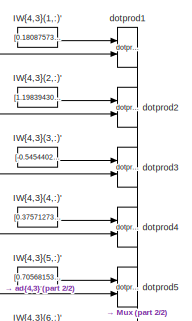
[diagram: Function Fitting Neural Network/Layer 4/LW{4,3} - part 1/2, top center region]
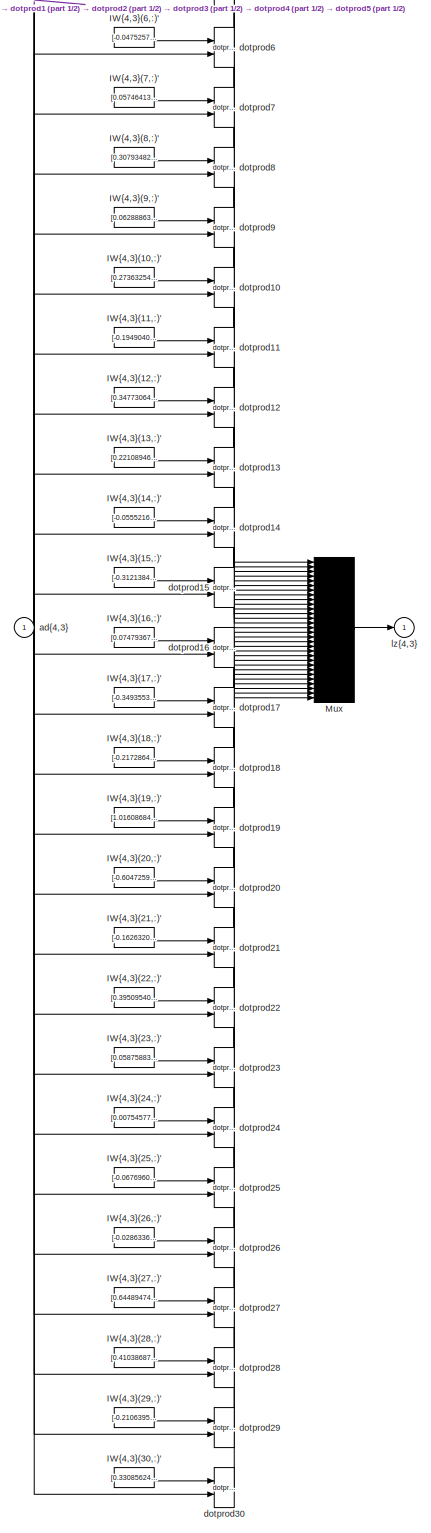
[diagram: Function Fitting Neural Network/Layer 4/LW{4,3} - part 2/2, most of the canvas]
BLOCK [SubSystem] Function Fitting Neural Network/Layer 4/LW{4,3}
  Ports = [1, 1]
  RequestExecContextInheritance = off
BLOCK [Constant] Function Fitting Neural Network/Layer 4/LW{4,3}/IW{4,3}(1,:)'
  Value = [0.1808757385718871846247424173270701430737972259521484375;0.47214171246040226304074849394964985549449920654296875;0.271688412786335653503755338533665053546428680419921875;0.2557227326891737817504690610803663730621337890625;0.715013833764288175842693817685358226299285888671875;0.057519475941762134019175078947228030301630496978759765625;-0.57710838891413207552005815159645862877368927001953125;-0.99...<+1854ch>
BLOCK [Constant] Function Fitting Neural Network/Layer 4/LW{4,3}/IW{4,3}(10,:)'
  Value = [0.273632544953307299540057329068076796829700469970703125;-0.0740719561890088862288195059591089375317096710205078125;-0.402018240655437064656751999791595153510570526123046875;0.119324461750928867420640244745300151407718658447265625;0.4933343692759344367715357293491251766681671142578125;0.45887846967349632532062742029665969312191009521484375;-0.091139799482993513746187375090812565758824348449707031...<+1847ch>
BLOCK [Constant] Function Fitting Neural Network/Layer 4/LW{4,3}/IW{4,3}(11,:)'
  Value = [-0.194904011918448027973482794550363905727863311767578125;-0.0725456414310112485122061798392678610980510711669921875;1.2063831567480753914622937372769229114055633544921875;0.038607879951746547353419458659118390642106533050537109375;-0.203326664058505579557589726391597650945186614990234375;0.186478709509439177782752494749729521572589874267578125;-0.5394348346776814961955892613332252949476242065429...<+1857ch>
BLOCK [Constant] Function Fitting Neural Network/Layer 4/LW{4,3}/IW{4,3}(12,:)'
  Value = [0.347730649652811918404182733866036869585514068603515625;-0.07902715026274938214800869218379375524818897247314453125;0.29206553677598001694803997452254407107830047607421875;-0.7539159085570992235858511776314117014408111572265625;0.56301805618381395301952352383523248136043548583984375;-0.12087033135898916924588775145821273326873779296875;0.282013417115946740665322067798115313053131103515625;0.5024...<+1900ch>
BLOCK [Constant] Function Fitting Neural Network/Layer 4/LW{4,3}/IW{4,3}(13,:)'
  Value = [0.221089460044449293008028689655475318431854248046875;-0.35571694614958249136549284230568446218967437744140625;-0.266305834931963747447269952317583374679088592529296875;0.06756894475407677902456526908281375654041767120361328125;0.6492979829947038705739714714582078158855438232421875;-0.0095874281903502688029217182474894798360764980316162109375;-0.451371320608180692790512011924874968826770782470703...<+1920ch>
BLOCK [Constant] Function Fitting Neural Network/Layer 4/LW{4,3}/IW{4,3}(14,:)'
  Value = [-0.0555216380848554680316198073342093266546726226806640625;0.134808318024235374021913003161898814141750335693359375;0.1538560608111680105825058717528008855879306793212890625;-0.17898528528879931176476247856044210493564605712890625;0.121719022317510694453090991373755969107151031494140625;0.134727954055129217625363935439963825047016143798828125;-0.185626184179793179973572136987058911472558975219726...<+1923ch>
BLOCK [Constant] Function Fitting Neural Network/Layer 4/LW{4,3}/IW{4,3}(15,:)'
  Value = [-0.31213842898716881446574689107364974915981292724609375;0.5897265053343108132111183294910006225109100341796875;0.5006522489490710103865467317518778145313262939453125;-1.0844953463980935293164975519175641238689422607421875;-0.1259150880721715826116025027658906765282154083251953125;-0.0178455293138568803212873348229550174437463283538818359375;-0.1558766487347290063958382688724668696522712707519531...<+1904ch>
BLOCK [Constant] Function Fitting Neural Network/Layer 4/LW{4,3}/IW{4,3}(16,:)'
  Value = [0.0747936733249013052660103539892588742077350616455078125;-0.668779611320414968389513887814246118068695068359375;-0.06980443929314140982800296342247747816145420074462890625;0.9010581116537978996205993098556064069271087646484375;0.334452532570544802670298167868168093264102935791015625;0.321672758131029523642752110390574671328067779541015625;-0.72652667143380800229834903802839107811450958251953125;...<+1885ch>
BLOCK [Constant] Function Fitting Neural Network/Layer 4/LW{4,3}/IW{4,3}(17,:)'
  Value = [-0.34935537050299225736438302192254923284053802490234375;-0.11200744155483223496450051470674225129187107086181640625;0.1469550071288498183097459559576236642897129058837890625;-0.15132816927369407977721493807621300220489501953125;0.1291943569969677685360665009284275583922863006591796875;-0.43254126049016139443637030126410536468029022216796875;0.18561912709668859644551730525563471019268035888671875...<+1866ch>
BLOCK [Constant] Function Fitting Neural Network/Layer 4/LW{4,3}/IW{4,3}(18,:)'
  Value = [-0.2172864960236343956356819262509816326200962066650390625;-0.378862659577916094377769695711322128772735595703125;-0.480047418448218909947655674841371364891529083251953125;-1.170419865849415597125471322215162217617034912109375;0.18431347499265360312392658670432865619659423828125;0.0139464466322336035075668547733585000969469547271728515625;-0.25827446808692899882231586161651648581027984619140625;-...<+1879ch>
BLOCK [Constant] Function Fitting Neural Network/Layer 4/LW{4,3}/IW{4,3}(19,:)'
  Value = [1.016086843403293915599761021439917385578155517578125;0.338721353568342375961464085776242427527904510498046875;0.280416456536576375047076226110220886766910552978515625;0.28074916819781059462712846652721054852008819580078125;0.36562549093662133348203724381164647638797760009765625;-0.4757795577058085978450208131107501685619354248046875;1.0761028124407598927092521989834494888782501220703125;-0.59283...<+1865ch>
BLOCK [Constant] Function Fitting Neural Network/Layer 4/LW{4,3}/IW{4,3}(2,:)'
  Value = [1.1983943093045150707354196129017509520053863525390625;-0.333898043707257452528125440949224866926670074462890625;-0.284573811125211684203151207839255221188068389892578125;-0.288483401463781319318258056227932684123516082763671875;-0.29668734334807156383106985231279395520687103271484375;0.25698586959729252665596277438453398644924163818359375;0.396003212517596014929921466318774037063121795654296875;...<+1890ch>
BLOCK [Constant] Function Fitting Neural Network/Layer 4/LW{4,3}/IW{4,3}(20,:)'
  Value = [-0.60472593237317795455965097062289714813232421875;-0.26769264883938503896132488080183975398540496826171875;0.36178311394662865385640770909958519041538238525390625;0.129404053602346191809147057938389480113983154296875;0.497503145352855280503234780553611926734447479248046875;-0.4996777890658294918324600075720809400081634521484375;-0.3190908203848634716592869153828360140323638916015625;0.3945413741...<+1875ch>
BLOCK [Constant] Function Fitting Neural Network/Layer 4/LW{4,3}/IW{4,3}(21,:)'
  Value = [-0.16263209582869386782277842939947731792926788330078125;-0.854440359761323708909230845165438950061798095703125;-0.2572795341844742456061112534371204674243927001953125;0.28278350855479883474430380374542437493801116943359375;-0.326073944794584402728787608793936669826507568359375;0.5545838300389529518241715777548961341381072998046875;-0.317131764158859075219965006908751092851161956787109375;0.68354...<+1861ch>
BLOCK [Constant] Function Fitting Neural Network/Layer 4/LW{4,3}/IW{4,3}(22,:)'
  Value = [0.395095401593908823745238123592571355402469635009765625;0.412852806064267330299344394006766378879547119140625;1.329568612887715772785668377764523029327392578125;-0.242813505158027187480485054038581438362598419189453125;-0.35870615802787553239028284224332310259342193603515625;-0.1373390471436138626781797711373656056821346282958984375;0.16605346265516052195465590557432733476161956787109375;1.06393...<+1863ch>
BLOCK [Constant] Function Fitting Neural Network/Layer 4/LW{4,3}/IW{4,3}(23,:)'
  Value = [0.05875883597817586900813324746195576153695583343505859375;-0.038931817411836322495588547099032439291477203369140625;-0.226234903558544531154694823271711356937885284423828125;-0.919573945383694191235690595931373536586761474609375;-0.875910911372409284325613043620251119136810302734375;-0.66859540523480465168404407449997961521148681640625;0.444519496188656992874399520587758161127567291259765625;0.3...<+1880ch>
BLOCK [Constant] Function Fitting Neural Network/Layer 4/LW{4,3}/IW{4,3}(24,:)'
  Value = [0.007545774596966492615834898316506951232440769672393798828125;0.8936155749168730455522791089606471359729766845703125;-1.79706739906084411728670602315105497837066650390625;-0.2277429089827614216989815076885861344635486602783203125;-0.381961012408008560026217992344754748046398162841796875;0.392423338558234024997517508381861262023448944091796875;0.091218775526561240996059609642543364316225051879882...<+1855ch>
BLOCK [Constant] Function Fitting Neural Network/Layer 4/LW{4,3}/IW{4,3}(25,:)'
  Value = [-0.06769607350365626496913051823867135681211948394775390625;0.0269094448767917583664743830240695388056337833404541015625;-0.2115892711363896727672084807636565528810024261474609375;-0.1470674657889266268018246819337946362793445587158203125;0.3613396094752072684741506236605346202850341796875;0.378802203387917924004568703821860253810882568359375;-0.659588076404161949284343791077844798564910888671875...<+1867ch>
BLOCK [Constant] Function Fitting Neural Network/Layer 4/LW{4,3}/IW{4,3}(26,:)'
  Value = [-0.028633656948608039727321994405428995378315448760986328125;0.60147910177032082312820193692459724843502044677734375;-0.409572146876119591585307944114902056753635406494140625;0.4154571111953224704649301202152855694293975830078125;0.1367171601568833161355343008835916407406330108642578125;-0.1771502948558578982574118754200753755867481231689453125;-0.2678057621874463389843867844319902360439300537109...<+1868ch>
BLOCK [Constant] Function Fitting Neural Network/Layer 4/LW{4,3}/IW{4,3}(27,:)'
  Value = [0.64489474457247319971742172128870151937007904052734375;-0.10257895152063860322311228401304106228053569793701171875;0.0165161030055501478752688626627787016332149505615234375;-0.37085151132165761200809583897353149950504302978515625;0.1423301796786575479369929553286056034266948699951171875;0.0250598357660139735292315066317314631305634975433349609375;0.30845467298829637448065454918832983821630477905...<+1892ch>
BLOCK [Constant] Function Fitting Neural Network/Layer 4/LW{4,3}/IW{4,3}(28,:)'
  Value = [0.41038687287496966593636216202867217361927032470703125;-0.395666274396820838443744605683605186641216278076171875;-0.334843403662379801577486659880378283560276031494140625;1.213550922881633908900766982696950435638427734375;0.10710567783696521571012993945259950123727321624755859375;0.600842361296325844222110390546731650829315185546875;-0.338824490774812192572795765954651869833469390869140625;-0.29...<+1899ch>
BLOCK [Constant] Function Fitting Neural Network/Layer 4/LW{4,3}/IW{4,3}(29,:)'
  Value = [-0.210639567086319645650149823268293403089046478271484375;-0.55710956897339125593049402596079744398593902587890625;0.01499085919111166342876373391845845617353916168212890625;-0.10090525495110293230371922845733934082090854644775390625;0.28853251527408085852499652901315130293369293212890625;0.1936459308754585328937736221632803790271282196044921875;-0.073587112072164007070540492350119166076183319091...<+1868ch>
BLOCK [Constant] Function Fitting Neural Network/Layer 4/LW{4,3}/IW{4,3}(3,:)'
  Value = [-0.545440261545346860572180958115495741367340087890625;0.03363816835551135253634669197708717547357082366943359375;-0.143767828563243493800172245755675248801708221435546875;-0.04947292149606362376967894078916287980973720550537109375;-0.37231549146282072459968048860901035368442535400390625;-0.61251316036075487136969286439125426113605499267578125;0.354330656246998276781567938087391667068004608154296...<+1898ch>
BLOCK [Constant] Function Fitting Neural Network/Layer 4/LW{4,3}/IW{4,3}(30,:)'
  Value = [0.33085624414954251104603599742404185235500335693359375;0.4457054771603006226854404303594492375850677490234375;-0.434186242300438340890877952915616333484649658203125;0.11768687901138751017438011103877215646207332611083984375;-0.8819125407148524775635678452090360224246978759765625;0.96963588238970610522216020399355329573154449462890625;-0.9454869973204902411367811509990133345127105712890625;-0.871...<+1863ch>
BLOCK [Constant] Function Fitting Neural Network/Layer 4/LW{4,3}/IW{4,3}(4,:)'
  Value = [0.375712735646603290806666564094484783709049224853515625;0.307713534722778792040998041557031683623790740966796875;0.655753806451713217029464431107044219970703125;-0.142029886687604245398830471458495594561100006103515625;0.108071764205805720404640624110470525920391082763671875;0.2874317926907632436694939315202645957469940185546875;0.058439226526991648602571416404316551052033901214599609375;0.91815...<+1880ch>
BLOCK [Constant] Function Fitting Neural Network/Layer 4/LW{4,3}/IW{4,3}(5,:)'
  Value = [0.705681536219235017171058643725700676441192626953125;-0.3371309815227629957945509886485524475574493408203125;0.18838466184523683377705083330511115491390228271484375;-0.0964808925032118180897811043905676342546939849853515625;0.266721569454133333731959965007263235747814178466796875;0.403837035314639936078862092472263611853122711181640625;0.2881436535462480463820611475966870784759521484375;-0.16622...<+1895ch>
BLOCK [Constant] Function Fitting Neural Network/Layer 4/LW{4,3}/IW{4,3}(6,:)'
  Value = [-0.047525760564391276996598634241308900527656078338623046875;-0.56483534148615299752549390177591703832149505615234375;0.262412934810893838655232457313104532659053802490234375;-0.5343739653417218793407528210082091391086578369140625;0.3180777333564483999595040586427785456180572509765625;-0.1287223589797339140528009693298372440040111541748046875;0.30485540901451013695577785256318747997283935546875;0...<+1867ch>
BLOCK [Constant] Function Fitting Neural Network/Layer 4/LW{4,3}/IW{4,3}(7,:)'
  Value = [0.05746413461531542365978708630791516043245792388916015625;-0.1703941698972802065714660102457855828106403350830078125;0.1558810346382088207750626906999968923628330230712890625;0.2471569104453683884958792305042152293026447296142578125;0.395903280986268979457776140407077036798000335693359375;0.6660907027506068889266543919802643358707427978515625;-0.31472505379675963510521796706598252058029174804687...<+1891ch>
BLOCK [Constant] Function Fitting Neural Network/Layer 4/LW{4,3}/IW{4,3}(8,:)'
  Value = [0.307934829187135272743347513824119232594966888427734375;0.07885617604449839113112119548532064072787761688232421875;0.06053627148728725482218493425534688867628574371337890625;-0.427131008925972166512252670145244337618350982666015625;-0.06847293958919975498389476342708803713321685791015625;0.1970244411410561891084824992503854446113109588623046875;-0.202518825562168908183124926836171653121709823608...<+1914ch>
BLOCK [Constant] Function Fitting Neural Network/Layer 4/LW{4,3}/IW{4,3}(9,:)'
  Value = [0.06288863944094262581341325812900322489440441131591796875;0.1321113503690140855706403044678154401481151580810546875;0.79325664955998054228558657996472902595996856689453125;-0.0230739328441384207446507303984617465175688266754150390625;0.71243311069788839429151039439602755010128021240234375;-0.125842454426118965926661985577084124088287353515625;-0.12905684693567043286321904815849848091602325439453...<+1851ch>
BLOCK [Mux] Function Fitting Neural Network/Layer 4/LW{4,3}/Mux
  Inputs = 30
  Ports = [30, 1]
BLOCK [Inport] Function Fitting Neural Network/Layer 4/LW{4,3}/ad{4,3}
  IconDisplay = Port number
  PortDimensions = 40
BLOCK [Reference] Function Fitting Neural Network/Layer 4/LW{4,3}/dotprod1  REF=neural/Weight Functions/dotprod
  Ports = [2, 1]
  SourceBlock = neural/Weight Functions/dotprod
  SourceProductBaseCode = NN
  SourceProductName = Neural Network Toolbox
  SourceType = DOTPROD
BLOCK [Reference] Function Fitting Neural Network/Layer 4/LW{4,3}/dotprod10  REF=neural/Weight Functions/dotprod
  Ports = [2, 1]
  SourceBlock = neural/Weight Functions/dotprod
  SourceProductBaseCode = NN
  SourceProductName = Neural Network Toolbox
  SourceType = DOTPROD
BLOCK [Reference] Function Fitting Neural Network/Layer 4/LW{4,3}/dotprod11  REF=neural/Weight Functions/dotprod
  Ports = [2, 1]
  SourceBlock = neural/Weight Functions/dotprod
  SourceProductBaseCode = NN
  SourceProductName = Neural Network Toolbox
  SourceType = DOTPROD
BLOCK [Reference] Function Fitting Neural Network/Layer 4/LW{4,3}/dotprod12  REF=neural/Weight Functions/dotprod
  Ports = [2, 1]
  SourceBlock = neural/Weight Functions/dotprod
  SourceProductBaseCode = NN
  SourceProductName = Neural Network Toolbox
  SourceType = DOTPROD
BLOCK [Reference] Function Fitting Neural Network/Layer 4/LW{4,3}/dotprod13  REF=neural/Weight Functions/dotprod
  Ports = [2, 1]
  SourceBlock = neural/Weight Functions/dotprod
  SourceProductBaseCode = NN
  SourceProductName = Neural Network Toolbox
  SourceType = DOTPROD
BLOCK [Reference] Function Fitting Neural Network/Layer 4/LW{4,3}/dotprod14  REF=neural/Weight Functions/dotprod
  Ports = [2, 1]
  SourceBlock = neural/Weight Functions/dotprod
  SourceProductBaseCode = NN
  SourceProductName = Neural Network Toolbox
  SourceType = DOTPROD
BLOCK [Reference] Function Fitting Neural Network/Layer 4/LW{4,3}/dotprod15  REF=neural/Weight Functions/dotprod
  Ports = [2, 1]
  SourceBlock = neural/Weight Functions/dotprod
  SourceProductBaseCode = NN
  SourceProductName = Neural Network Toolbox
  SourceType = DOTPROD
BLOCK [Reference] Function Fitting Neural Network/Layer 4/LW{4,3}/dotprod16  REF=neural/Weight Functions/dotprod
  Ports = [2, 1]
  SourceBlock = neural/Weight Functions/dotprod
  SourceProductBaseCode = NN
  SourceProductName = Neural Network Toolbox
  SourceType = DOTPROD
BLOCK [Reference] Function Fitting Neural Network/Layer 4/LW{4,3}/dotprod17  REF=neural/Weight Functions/dotprod
  Ports = [2, 1]
  SourceBlock = neural/Weight Functions/dotprod
  SourceProductBaseCode = NN
  SourceProductName = Neural Network Toolbox
  SourceType = DOTPROD
BLOCK [Reference] Function Fitting Neural Network/Layer 4/LW{4,3}/dotprod18  REF=neural/Weight Functions/dotprod
  Ports = [2, 1]
  SourceBlock = neural/Weight Functions/dotprod
  SourceProductBaseCode = NN
  SourceProductName = Neural Network Toolbox
  SourceType = DOTPROD
BLOCK [Reference] Function Fitting Neural Network/Layer 4/LW{4,3}/dotprod19  REF=neural/Weight Functions/dotprod
  Ports = [2, 1]
  SourceBlock = neural/Weight Functions/dotprod
  SourceProductBaseCode = NN
  SourceProductName = Neural Network Toolbox
  SourceType = DOTPROD
BLOCK [Reference] Function Fitting Neural Network/Layer 4/LW{4,3}/dotprod2  REF=neural/Weight Functions/dotprod
  Ports = [2, 1]
  SourceBlock = neural/Weight Functions/dotprod
  SourceProductBaseCode = NN
  SourceProductName = Neural Network Toolbox
  SourceType = DOTPROD
BLOCK [Reference] Function Fitting Neural Network/Layer 4/LW{4,3}/dotprod20  REF=neural/Weight Functions/dotprod
  Ports = [2, 1]
  SourceBlock = neural/Weight Functions/dotprod
  SourceProductBaseCode = NN
  SourceProductName = Neural Network Toolbox
  SourceType = DOTPROD
BLOCK [Reference] Function Fitting Neural Network/Layer 4/LW{4,3}/dotprod21  REF=neural/Weight Functions/dotprod
  Ports = [2, 1]
  SourceBlock = neural/Weight Functions/dotprod
  SourceProductBaseCode = NN
  SourceProductName = Neural Network Toolbox
  SourceType = DOTPROD
BLOCK [Reference] Function Fitting Neural Network/Layer 4/LW{4,3}/dotprod22  REF=neural/Weight Functions/dotprod
  Ports = [2, 1]
  SourceBlock = neural/Weight Functions/dotprod
  SourceProductBaseCode = NN
  SourceProductName = Neural Network Toolbox
  SourceType = DOTPROD
BLOCK [Reference] Function Fitting Neural Network/Layer 4/LW{4,3}/dotprod23  REF=neural/Weight Functions/dotprod
  Ports = [2, 1]
  SourceBlock = neural/Weight Functions/dotprod
  SourceProductBaseCode = NN
  SourceProductName = Neural Network Toolbox
  SourceType = DOTPROD
BLOCK [Reference] Function Fitting Neural Network/Layer 4/LW{4,3}/dotprod24  REF=neural/Weight Functions/dotprod
  Ports = [2, 1]
  SourceBlock = neural/Weight Functions/dotprod
  SourceProductBaseCode = NN
  SourceProductName = Neural Network Toolbox
  SourceType = DOTPROD
BLOCK [Reference] Function Fitting Neural Network/Layer 4/LW{4,3}/dotprod25  REF=neural/Weight Functions/dotprod
  Ports = [2, 1]
  SourceBlock = neural/Weight Functions/dotprod
  SourceProductBaseCode = NN
  SourceProductName = Neural Network Toolbox
  SourceType = DOTPROD
BLOCK [Reference] Function Fitting Neural Network/Layer 4/LW{4,3}/dotprod26  REF=neural/Weight Functions/dotprod
  Ports = [2, 1]
  SourceBlock = neural/Weight Functions/dotprod
  SourceProductBaseCode = NN
  SourceProductName = Neural Network Toolbox
  SourceType = DOTPROD
BLOCK [Reference] Function Fitting Neural Network/Layer 4/LW{4,3}/dotprod27  REF=neural/Weight Functions/dotprod
  Ports = [2, 1]
  SourceBlock = neural/Weight Functions/dotprod
  SourceProductBaseCode = NN
  SourceProductName = Neural Network Toolbox
  SourceType = DOTPROD
BLOCK [Reference] Function Fitting Neural Network/Layer 4/LW{4,3}/dotprod28  REF=neural/Weight Functions/dotprod
  Ports = [2, 1]
  SourceBlock = neural/Weight Functions/dotprod
  SourceProductBaseCode = NN
  SourceProductName = Neural Network Toolbox
  SourceType = DOTPROD
BLOCK [Reference] Function Fitting Neural Network/Layer 4/LW{4,3}/dotprod29  REF=neural/Weight Functions/dotprod
  Ports = [2, 1]
  SourceBlock = neural/Weight Functions/dotprod
  SourceProductBaseCode = NN
  SourceProductName = Neural Network Toolbox
  SourceType = DOTPROD
BLOCK [Reference] Function Fitting Neural Network/Layer 4/LW{4,3}/dotprod3  REF=neural/Weight Functions/dotprod
  Ports = [2, 1]
  SourceBlock = neural/Weight Functions/dotprod
  SourceProductBaseCode = NN
  SourceProductName = Neural Network Toolbox
  SourceType = DOTPROD
BLOCK [Reference] Function Fitting Neural Network/Layer 4/LW{4,3}/dotprod30  REF=neural/Weight Functions/dotprod
  Ports = [2, 1]
  SourceBlock = neural/Weight Functions/dotprod
  SourceProductBaseCode = NN
  SourceProductName = Neural Network Toolbox
  SourceType = DOTPROD
BLOCK [Reference] Function Fitting Neural Network/Layer 4/LW{4,3}/dotprod4  REF=neural/Weight Functions/dotprod
  Ports = [2, 1]
  SourceBlock = neural/Weight Functions/dotprod
  SourceProductBaseCode = NN
  SourceProductName = Neural Network Toolbox
  SourceType = DOTPROD
BLOCK [Reference] Function Fitting Neural Network/Layer 4/LW{4,3}/dotprod5  REF=neural/Weight Functions/dotprod
  Ports = [2, 1]
  SourceBlock = neural/Weight Functions/dotprod
  SourceProductBaseCode = NN
  SourceProductName = Neural Network Toolbox
  SourceType = DOTPROD
BLOCK [Reference] Function Fitting Neural Network/Layer 4/LW{4,3}/dotprod6  REF=neural/Weight Functions/dotprod
  Ports = [2, 1]
  SourceBlock = neural/Weight Functions/dotprod
  SourceProductBaseCode = NN
  SourceProductName = Neural Network Toolbox
  SourceType = DOTPROD
BLOCK [Reference] Function Fitting Neural Network/Layer 4/LW{4,3}/dotprod7  REF=neural/Weight Functions/dotprod
  Ports = [2, 1]
  SourceBlock = neural/Weight Functions/dotprod
  SourceProductBaseCode = NN
  SourceProductName = Neural Network Toolbox
  SourceType = DOTPROD
BLOCK [Reference] Function Fitting Neural Network/Layer 4/LW{4,3}/dotprod8  REF=neural/Weight Functions/dotprod
  Ports = [2, 1]
  SourceBlock = neural/Weight Functions/dotprod
  SourceProductBaseCode = NN
  SourceProductName = Neural Network Toolbox
  SourceType = DOTPROD
BLOCK [Reference] Function Fitting Neural Network/Layer 4/LW{4,3}/dotprod9  REF=neural/Weight Functions/dotprod
  Ports = [2, 1]
  SourceBlock = neural/Weight Functions/dotprod
  SourceProductBaseCode = NN
  SourceProductName = Neural Network Toolbox
  SourceType = DOTPROD
BLOCK [Outport] Function Fitting Neural Network/Layer 4/LW{4,3}/lz{4,3}
  IconDisplay = Port number
BLOCK [Inport] Function Fitting Neural Network/Layer 4/a{3} 
  IconDisplay = Port number
  PortDimensions = 40
BLOCK [Outport] Function Fitting Neural Network/Layer 4/a{4}
  IconDisplay = Port number
  InitialOutput = [0;0;0;0;0;0;0;0;0;0;0;0;0;0;0;0;0;0;0;0;0;0;0;0;0;0;0;0;0;0]
BLOCK [Constant] Function Fitting Neural Network/Layer 4/b{4}
  Value = [-1.8781669553689643858973568057990632951259613037109375;-1.332599567172116028501704931841231882572174072265625;1.4757312296384654803915736920316703617572784423828125;-1.3186372785731546031229299842379987239837646484375;-1.39602439460926586178857178310863673686981201171875;1.2185221273720940882157037776778452098369598388671875;0.6949940928564302122794060778687708079814910888671875;-0.8751107176479...<+1266ch>
BLOCK [Sum] Function Fitting Neural Network/Layer 4/netsum
  Inputs = 2
  Ports = [2, 1]
BLOCK [Reference] Function Fitting Neural Network/Layer 4/tansig  REF=neural/Transfer Functions/tansig
  Ports = [1, 1]
  SourceBlock = neural/Transfer Functions/tansig
  SourceProductBaseCode = NN
  SourceProductName = Neural Network Toolbox
  SourceType = TANSIG
BLOCK [SubSystem] Function Fitting Neural Network/Layer 5
  Ports = [1, 1]
  RequestExecContextInheritance = off
BLOCK [SubSystem] Function Fitting Neural Network/Layer 5/Delays 1
  Ports = [1, 1]
  RequestExecContextInheritance = off
BLOCK [Mux] Function Fitting Neural Network/Layer 5/Delays 1/mux
  Inputs = 1
  Ports = [1, 1]
BLOCK [Outport] Function Fitting Neural Network/Layer 5/Delays 1/pd{5,4}
  IconDisplay = Port number
BLOCK [Inport] Function Fitting Neural Network/Layer 5/Delays 1/p{5}
  IconDisplay = Port number
  PortDimensions = 30
BLOCK [SubSystem] Function Fitting Neural Network/Layer 5/LW{5,4}
  Ports = [1, 1]
  RequestExecContextInheritance = off
BLOCK [Constant] Function Fitting Neural Network/Layer 5/LW{5,4}/IW{5,4}(1,:)'
  Value = [-1.9549792750881287428654786708648316562175750732421875;0.98114975151038585909901712511782534420490264892578125;-0.32675385133424350581066164522781036794185638427734375;-1.93954146076110500729328123270533978939056396484375;0.80033909972648109576454089619801379740238189697265625;-2.975989623557696805988825872191227972507476806640625;-0.2093914166210118221744806987771880812942981719970703125;1.0302...<+1255ch>
BLOCK [Constant] Function Fitting Neural Network/Layer 5/LW{5,4}/IW{5,4}(2,:)'
  Value = [0.0012270910690294939589251033140726576675660908222198486328125;-0.6810810449990423176558351769926957786083221435546875;-1.3056296010694932174800442226114682853221893310546875;4.19604007762626997021272734489372169264242984354496002197265625e-05;-1.0798036744520616014852976149995811283588409423828125;-0.0003984889985695265024294442479657618605415336787700653076171875;-0.665412331506071041964389678...<+1532ch>
BLOCK [Mux] Function Fitting Neural Network/Layer 5/LW{5,4}/Mux
  Inputs = 2
  Ports = [2, 1]
BLOCK [Inport] Function Fitting Neural Network/Layer 5/LW{5,4}/ad{5,4}
  IconDisplay = Port number
  PortDimensions = 30
BLOCK [Reference] Function Fitting Neural Network/Layer 5/LW{5,4}/dotprod1  REF=neural/Weight Functions/dotprod
  Ports = [2, 1]
  SourceBlock = neural/Weight Functions/dotprod
  SourceProductBaseCode = NN
  SourceProductName = Neural Network Toolbox
  SourceType = DOTPROD
BLOCK [Reference] Function Fitting Neural Network/Layer 5/LW{5,4}/dotprod2  REF=neural/Weight Functions/dotprod
  Ports = [2, 1]
  SourceBlock = neural/Weight Functions/dotprod
  SourceProductBaseCode = NN
  SourceProductName = Neural Network Toolbox
  SourceType = DOTPROD
BLOCK [Outport] Function Fitting Neural Network/Layer 5/LW{5,4}/lz{5,4}
  IconDisplay = Port number
BLOCK [Inport] Function Fitting Neural Network/Layer 5/a{4} 
  IconDisplay = Port number
  PortDimensions = 30
BLOCK [Outport] Function Fitting Neural Network/Layer 5/a{5}
  IconDisplay = Port number
  InitialOutput = [0;0]
BLOCK [Constant] Function Fitting Neural Network/Layer 5/b{5}
  Value = [-1.1419126269936918927072611040784977376461029052734375;0.33891649081087471540030264804954640567302703857421875]
BLOCK [Sum] Function Fitting Neural Network/Layer 5/netsum
  Inputs = 2
  Ports = [2, 1]
BLOCK [Reference] Function Fitting Neural Network/Layer 5/purelin  REF=neural/Transfer Functions/purelin
  Ports = [1, 1]
  SourceBlock = neural/Transfer Functions/purelin
  SourceProductBaseCode = NN
  SourceProductName = Neural Network Toolbox
  SourceType = PURELIN
BLOCK [Outport] Function Fitting Neural Network/Output
  IconDisplay = Port number
  InitialOutput = [0;0;0]
BLOCK [SubSystem] Function Fitting Neural Network/Process Input 1
  Ports = [1, 1]
  RequestExecContextInheritance = off
BLOCK [Reference] Function Fitting Neural Network/Process Input 1/mapminmax  REF=neural/Processing Functions/mapminmax
  Ports = [1, 1]
  SourceBlock = neural/Processing Functions/mapminmax
  SourceProductBaseCode = NN
  SourceProductName = Neural Network Toolbox
  SourceType = MAPMINMAX Preprocess
BLOCK [Outport] Function Fitting Neural Network/Process Input 1/p
  IconDisplay = Port number
  PortDimensions = 7
BLOCK [Inport] Function Fitting Neural Network/Process Input 1/x
  IconDisplay = Port number
  PortDimensions = 7
BLOCK [SubSystem] Function Fitting Neural Network/Process Output 1
  Ports = [1, 1]
  RequestExecContextInheritance = off
BLOCK [Inport] Function Fitting Neural Network/Process Output 1/a
  IconDisplay = Port number
  PortDimensions = 2
BLOCK [Reference] Function Fitting Neural Network/Process Output 1/mapminmax_reverse  REF=neural/Processing Functions/mapminmax_reverse
  Ports = [1, 1]
  SourceBlock = neural/Processing Functions/mapminmax_reverse
  SourceProductBaseCode = NN
  SourceProductName = Neural Network Toolbox
  SourceType = MAPMINMAX Reverse Process
BLOCK [Reference] Function Fitting Neural Network/Process Output 1/removeconstantrows_reverse  REF=neural/Processing Functions/removeconstantrows_reverse
  Ports = [1, 1]
  SourceBlock = neural/Processing Functions/removeconstantrows_reverse
  SourceProductBaseCode = NN
  SourceProductName = Neural Network Toolbox
  SourceType = REMOVECONSTANTROWS Reverse Process
BLOCK [Outport] Function Fitting Neural Network/Process Output 1/y
  IconDisplay = Port number
  PortDimensions = 3
BLOCK [Goto] Function Fitting Neural Network/a{1}
  GotoTag = feedback1
BLOCK [Goto] Function Fitting Neural Network/a{2}
  GotoTag = feedback2
BLOCK [Goto] Function Fitting Neural Network/a{3}
  GotoTag = feedback3
BLOCK [Goto] Function Fitting Neural Network/a{4}
  GotoTag = feedback4
BLOCK [Constant] x1
  SampleTime = 1
  Value = [0.037;0.41;0.52;0.16;0.16;0.93;0.65]
BLOCK [Scope] y1
  Floating = off
  NumInputPorts = 1
  Ports = [1]
LINE Function Fitting Neural Network/ a{1} :1 -> Function Fitting Neural Network/Layer 2:1
LINE Function Fitting Neural Network/ a{2} :1 -> Function Fitting Neural Network/Layer 3:1
LINE Function Fitting Neural Network/ a{3} :1 -> Function Fitting Neural Network/Layer 4:1
LINE Function Fitting Neural Network/ a{4} :1 -> Function Fitting Neural Network/Layer 5:1
LINE Function Fitting Neural Network/Input:1 -> Function Fitting Neural Network/Process Input 1:1
LINE Function Fitting Neural Network/Layer 1/Delays 1/mux:1 -> Function Fitting Neural Network/Layer 1/Delays 1/pd{1,1}:1
LINE Function Fitting Neural Network/Layer 1/Delays 1/p{1}:1 -> Function Fitting Neural Network/Layer 1/Delays 1/mux:1
LINE Function Fitting Neural Network/Layer 1/Delays 1:1 -> Function Fitting Neural Network/Layer 1/IW{1,1}:1
LINE Function Fitting Neural Network/Layer 1/IW{1,1}/IW{1,1}(1,:)':1 -> Function Fitting Neural Network/Layer 1/IW{1,1}/dotprod1:1
LINE Function Fitting Neural Network/Layer 1/IW{1,1}/IW{1,1}(10,:)':1 -> Function Fitting Neural Network/Layer 1/IW{1,1}/dotprod10:1
LINE Function Fitting Neural Network/Layer 1/IW{1,1}/IW{1,1}(11,:)':1 -> Function Fitting Neural Network/Layer 1/IW{1,1}/dotprod11:1
LINE Function Fitting Neural Network/Layer 1/IW{1,1}/IW{1,1}(12,:)':1 -> Function Fitting Neural Network/Layer 1/IW{1,1}/dotprod12:1
LINE Function Fitting Neural Network/Layer 1/IW{1,1}/IW{1,1}(13,:)':1 -> Function Fitting Neural Network/Layer 1/IW{1,1}/dotprod13:1
LINE Function Fitting Neural Network/Layer 1/IW{1,1}/IW{1,1}(14,:)':1 -> Function Fitting Neural Network/Layer 1/IW{1,1}/dotprod14:1
LINE Function Fitting Neural Network/Layer 1/IW{1,1}/IW{1,1}(15,:)':1 -> Function Fitting Neural Network/Layer 1/IW{1,1}/dotprod15:1
LINE Function Fitting Neural Network/Layer 1/IW{1,1}/IW{1,1}(2,:)':1 -> Function Fitting Neural Network/Layer 1/IW{1,1}/dotprod2:1
LINE Function Fitting Neural Network/Layer 1/IW{1,1}/IW{1,1}(3,:)':1 -> Function Fitting Neural Network/Layer 1/IW{1,1}/dotprod3:1
LINE Function Fitting Neural Network/Layer 1/IW{1,1}/IW{1,1}(4,:)':1 -> Function Fitting Neural Network/Layer 1/IW{1,1}/dotprod4:1
LINE Function Fitting Neural Network/Layer 1/IW{1,1}/IW{1,1}(5,:)':1 -> Function Fitting Neural Network/Layer 1/IW{1,1}/dotprod5:1
LINE Function Fitting Neural Network/Layer 1/IW{1,1}/IW{1,1}(6,:)':1 -> Function Fitting Neural Network/Layer 1/IW{1,1}/dotprod6:1
LINE Function Fitting Neural Network/Layer 1/IW{1,1}/IW{1,1}(7,:)':1 -> Function Fitting Neural Network/Layer 1/IW{1,1}/dotprod7:1
LINE Function Fitting Neural Network/Layer 1/IW{1,1}/IW{1,1}(8,:)':1 -> Function Fitting Neural Network/Layer 1/IW{1,1}/dotprod8:1
LINE Function Fitting Neural Network/Layer 1/IW{1,1}/IW{1,1}(9,:)':1 -> Function Fitting Neural Network/Layer 1/IW{1,1}/dotprod9:1
LINE Function Fitting Neural Network/Layer 1/IW{1,1}/Mux:1 -> Function Fitting Neural Network/Layer 1/IW{1,1}/iz{1,1}:1
LINE Function Fitting Neural Network/Layer 1/IW{1,1}/dotprod10:1 -> Function Fitting Neural Network/Layer 1/IW{1,1}/Mux:10
LINE Function Fitting Neural Network/Layer 1/IW{1,1}/dotprod11:1 -> Function Fitting Neural Network/Layer 1/IW{1,1}/Mux:11
LINE Function Fitting Neural Network/Layer 1/IW{1,1}/dotprod12:1 -> Function Fitting Neural Network/Layer 1/IW{1,1}/Mux:12
LINE Function Fitting Neural Network/Layer 1/IW{1,1}/dotprod13:1 -> Function Fitting Neural Network/Layer 1/IW{1,1}/Mux:13
LINE Function Fitting Neural Network/Layer 1/IW{1,1}/dotprod14:1 -> Function Fitting Neural Network/Layer 1/IW{1,1}/Mux:14
LINE Function Fitting Neural Network/Layer 1/IW{1,1}/dotprod15:1 -> Function Fitting Neural Network/Layer 1/IW{1,1}/Mux:15
LINE Function Fitting Neural Network/Layer 1/IW{1,1}/dotprod1:1 -> Function Fitting Neural Network/Layer 1/IW{1,1}/Mux:1
LINE Function Fitting Neural Network/Layer 1/IW{1,1}/dotprod2:1 -> Function Fitting Neural Network/Layer 1/IW{1,1}/Mux:2
LINE Function Fitting Neural Network/Layer 1/IW{1,1}/dotprod3:1 -> Function Fitting Neural Network/Layer 1/IW{1,1}/Mux:3
LINE Function Fitting Neural Network/Layer 1/IW{1,1}/dotprod4:1 -> Function Fitting Neural Network/Layer 1/IW{1,1}/Mux:4
LINE Function Fitting Neural Network/Layer 1/IW{1,1}/dotprod5:1 -> Function Fitting Neural Network/Layer 1/IW{1,1}/Mux:5
LINE Function Fitting Neural Network/Layer 1/IW{1,1}/dotprod6:1 -> Function Fitting Neural Network/Layer 1/IW{1,1}/Mux:6
LINE Function Fitting Neural Network/Layer 1/IW{1,1}/dotprod7:1 -> Function Fitting Neural Network/Layer 1/IW{1,1}/Mux:7
LINE Function Fitting Neural Network/Layer 1/IW{1,1}/dotprod8:1 -> Function Fitting Neural Network/Layer 1/IW{1,1}/Mux:8
LINE Function Fitting Neural Network/Layer 1/IW{1,1}/dotprod9:1 -> Function Fitting Neural Network/Layer 1/IW{1,1}/Mux:9
NET Function Fitting Neural Network/Layer 1/IW{1,1}/pd{1,1}:1 -> Function Fitting Neural Network/Layer 1/IW{1,1}/dotprod10:2, Function Fitting Neural Network/Layer 1/IW{1,1}/dotprod11:2, Function Fitting Neural Network/Layer 1/IW{1,1}/dotprod12:2, Function Fitting Neural Network/Layer 1/IW{1,1}/dotprod13:2, Function Fitting Neural Network/Layer 1/IW{1,1}/dotprod14:2, Function Fitting Neural Network/Layer 1/IW{1,1}/dotprod15:2, Function Fitting Neural Network/Layer 1/IW{1,1}/dotprod1:2, Function Fitting Neural Network/Layer 1/IW{1,1}/dotprod2:2, Function Fitting Neural Network/Layer 1/IW{1,1}/dotprod3:2, Function Fitting Neural Network/Layer 1/IW{1,1}/dotprod4:2, Function Fitting Neural Network/Layer 1/IW{1,1}/dotprod5:2, Function Fitting Neural Network/Layer 1/IW{1,1}/dotprod6:2, Function Fitting Neural Network/Layer 1/IW{1,1}/dotprod7:2, Function Fitting Neural Network/Layer 1/IW{1,1}/dotprod8:2, Function Fitting Neural Network/Layer 1/IW{1,1}/dotprod9:2
LINE Function Fitting Neural Network/Layer 1/IW{1,1}:1 -> Function Fitting Neural Network/Layer 1/netsum:1
LINE Function Fitting Neural Network/Layer 1/b{1}:1 -> Function Fitting Neural Network/Layer 1/netsum:2
LINE Function Fitting Neural Network/Layer 1/netsum:1 -> Function Fitting Neural Network/Layer 1/tansig:1
LINE Function Fitting Neural Network/Layer 1/p{1}:1 -> Function Fitting Neural Network/Layer 1/Delays 1:1
LINE Function Fitting Neural Network/Layer 1/tansig:1 -> Function Fitting Neural Network/Layer 1/a{1}:1
LINE Function Fitting Neural Network/Layer 1:1 -> Function Fitting Neural Network/a{1}:1
LINE Function Fitting Neural Network/Layer 2/Delays 1/mux:1 -> Function Fitting Neural Network/Layer 2/Delays 1/pd{2,1}:1
LINE Function Fitting Neural Network/Layer 2/Delays 1/p{2}:1 -> Function Fitting Neural Network/Layer 2/Delays 1/mux:1
LINE Function Fitting Neural Network/Layer 2/Delays 1:1 -> Function Fitting Neural Network/Layer 2/LW{2,1}:1
LINE Function Fitting Neural Network/Layer 2/LW{2,1}/IW{2,1}(1,:)':1 -> Function Fitting Neural Network/Layer 2/LW{2,1}/dotprod1:1
LINE Function Fitting Neural Network/Layer 2/LW{2,1}/IW{2,1}(10,:)':1 -> Function Fitting Neural Network/Layer 2/LW{2,1}/dotprod10:1
LINE Function Fitting Neural Network/Layer 2/LW{2,1}/IW{2,1}(11,:)':1 -> Function Fitting Neural Network/Layer 2/LW{2,1}/dotprod11:1
LINE Function Fitting Neural Network/Layer 2/LW{2,1}/IW{2,1}(12,:)':1 -> Function Fitting Neural Network/Layer 2/LW{2,1}/dotprod12:1
LINE Function Fitting Neural Network/Layer 2/LW{2,1}/IW{2,1}(13,:)':1 -> Function Fitting Neural Network/Layer 2/LW{2,1}/dotprod13:1
LINE Function Fitting Neural Network/Layer 2/LW{2,1}/IW{2,1}(14,:)':1 -> Function Fitting Neural Network/Layer 2/LW{2,1}/dotprod14:1
LINE Function Fitting Neural Network/Layer 2/LW{2,1}/IW{2,1}(15,:)':1 -> Function Fitting Neural Network/Layer 2/LW{2,1}/dotprod15:1
LINE Function Fitting Neural Network/Layer 2/LW{2,1}/IW{2,1}(16,:)':1 -> Function Fitting Neural Network/Layer 2/LW{2,1}/dotprod16:1
LINE Function Fitting Neural Network/Layer 2/LW{2,1}/IW{2,1}(17,:)':1 -> Function Fitting Neural Network/Layer 2/LW{2,1}/dotprod17:1
LINE Function Fitting Neural Network/Layer 2/LW{2,1}/IW{2,1}(18,:)':1 -> Function Fitting Neural Network/Layer 2/LW{2,1}/dotprod18:1
LINE Function Fitting Neural Network/Layer 2/LW{2,1}/IW{2,1}(19,:)':1 -> Function Fitting Neural Network/Layer 2/LW{2,1}/dotprod19:1
LINE Function Fitting Neural Network/Layer 2/LW{2,1}/IW{2,1}(2,:)':1 -> Function Fitting Neural Network/Layer 2/LW{2,1}/dotprod2:1
LINE Function Fitting Neural Network/Layer 2/LW{2,1}/IW{2,1}(20,:)':1 -> Function Fitting Neural Network/Layer 2/LW{2,1}/dotprod20:1
LINE Function Fitting Neural Network/Layer 2/LW{2,1}/IW{2,1}(3,:)':1 -> Function Fitting Neural Network/Layer 2/LW{2,1}/dotprod3:1
LINE Function Fitting Neural Network/Layer 2/LW{2,1}/IW{2,1}(4,:)':1 -> Function Fitting Neural Network/Layer 2/LW{2,1}/dotprod4:1
LINE Function Fitting Neural Network/Layer 2/LW{2,1}/IW{2,1}(5,:)':1 -> Function Fitting Neural Network/Layer 2/LW{2,1}/dotprod5:1
LINE Function Fitting Neural Network/Layer 2/LW{2,1}/IW{2,1}(6,:)':1 -> Function Fitting Neural Network/Layer 2/LW{2,1}/dotprod6:1
LINE Function Fitting Neural Network/Layer 2/LW{2,1}/IW{2,1}(7,:)':1 -> Function Fitting Neural Network/Layer 2/LW{2,1}/dotprod7:1
LINE Function Fitting Neural Network/Layer 2/LW{2,1}/IW{2,1}(8,:)':1 -> Function Fitting Neural Network/Layer 2/LW{2,1}/dotprod8:1
LINE Function Fitting Neural Network/Layer 2/LW{2,1}/IW{2,1}(9,:)':1 -> Function Fitting Neural Network/Layer 2/LW{2,1}/dotprod9:1
LINE Function Fitting Neural Network/Layer 2/LW{2,1}/Mux:1 -> Function Fitting Neural Network/Layer 2/LW{2,1}/lz{2,1}:1
NET Function Fitting Neural Network/Layer 2/LW{2,1}/ad{2,1}:1 -> Function Fitting Neural Network/Layer 2/LW{2,1}/dotprod10:2, Function Fitting Neural Network/Layer 2/LW{2,1}/dotprod11:2, Function Fitting Neural Network/Layer 2/LW{2,1}/dotprod12:2, Function Fitting Neural Network/Layer 2/LW{2,1}/dotprod13:2, Function Fitting Neural Network/Layer 2/LW{2,1}/dotprod14:2, Function Fitting Neural Network/Layer 2/LW{2,1}/dotprod15:2, Function Fitting Neural Network/Layer 2/LW{2,1}/dotprod16:2, Function Fitting Neural Network/Layer 2/LW{2,1}/dotprod17:2, Function Fitting Neural Network/Layer 2/LW{2,1}/dotprod18:2, Function Fitting Neural Network/Layer 2/LW{2,1}/dotprod19:2, Function Fitting Neural Network/Layer 2/LW{2,1}/dotprod1:2, Function Fitting Neural Network/Layer 2/LW{2,1}/dotprod20:2, Function Fitting Neural Network/Layer 2/LW{2,1}/dotprod2:2, Function Fitting Neural Network/Layer 2/LW{2,1}/dotprod3:2, Function Fitting Neural Network/Layer 2/LW{2,1}/dotprod4:2, Function Fitting Neural Network/Layer 2/LW{2,1}/dotprod5:2, Function Fitting Neural Network/Layer 2/LW{2,1}/dotprod6:2, Function Fitting Neural Network/Layer 2/LW{2,1}/dotprod7:2, Function Fitting Neural Network/Layer 2/LW{2,1}/dotprod8:2, Function Fitting Neural Network/Layer 2/LW{2,1}/dotprod9:2
LINE Function Fitting Neural Network/Layer 2/LW{2,1}/dotprod10:1 -> Function Fitting Neural Network/Layer 2/LW{2,1}/Mux:10
LINE Function Fitting Neural Network/Layer 2/LW{2,1}/dotprod11:1 -> Function Fitting Neural Network/Layer 2/LW{2,1}/Mux:11
LINE Function Fitting Neural Network/Layer 2/LW{2,1}/dotprod12:1 -> Function Fitting Neural Network/Layer 2/LW{2,1}/Mux:12
LINE Function Fitting Neural Network/Layer 2/LW{2,1}/dotprod13:1 -> Function Fitting Neural Network/Layer 2/LW{2,1}/Mux:13
LINE Function Fitting Neural Network/Layer 2/LW{2,1}/dotprod14:1 -> Function Fitting Neural Network/Layer 2/LW{2,1}/Mux:14
LINE Function Fitting Neural Network/Layer 2/LW{2,1}/dotprod15:1 -> Function Fitting Neural Network/Layer 2/LW{2,1}/Mux:15
LINE Function Fitting Neural Network/Layer 2/LW{2,1}/dotprod16:1 -> Function Fitting Neural Network/Layer 2/LW{2,1}/Mux:16
LINE Function Fitting Neural Network/Layer 2/LW{2,1}/dotprod17:1 -> Function Fitting Neural Network/Layer 2/LW{2,1}/Mux:17
LINE Function Fitting Neural Network/Layer 2/LW{2,1}/dotprod18:1 -> Function Fitting Neural Network/Layer 2/LW{2,1}/Mux:18
LINE Function Fitting Neural Network/Layer 2/LW{2,1}/dotprod19:1 -> Function Fitting Neural Network/Layer 2/LW{2,1}/Mux:19
LINE Function Fitting Neural Network/Layer 2/LW{2,1}/dotprod1:1 -> Function Fitting Neural Network/Layer 2/LW{2,1}/Mux:1
LINE Function Fitting Neural Network/Layer 2/LW{2,1}/dotprod20:1 -> Function Fitting Neural Network/Layer 2/LW{2,1}/Mux:20
LINE Function Fitting Neural Network/Layer 2/LW{2,1}/dotprod2:1 -> Function Fitting Neural Network/Layer 2/LW{2,1}/Mux:2
LINE Function Fitting Neural Network/Layer 2/LW{2,1}/dotprod3:1 -> Function Fitting Neural Network/Layer 2/LW{2,1}/Mux:3
LINE Function Fitting Neural Network/Layer 2/LW{2,1}/dotprod4:1 -> Function Fitting Neural Network/Layer 2/LW{2,1}/Mux:4
LINE Function Fitting Neural Network/Layer 2/LW{2,1}/dotprod5:1 -> Function Fitting Neural Network/Layer 2/LW{2,1}/Mux:5
LINE Function Fitting Neural Network/Layer 2/LW{2,1}/dotprod6:1 -> Function Fitting Neural Network/Layer 2/LW{2,1}/Mux:6
LINE Function Fitting Neural Network/Layer 2/LW{2,1}/dotprod7:1 -> Function Fitting Neural Network/Layer 2/LW{2,1}/Mux:7
LINE Function Fitting Neural Network/Layer 2/LW{2,1}/dotprod8:1 -> Function Fitting Neural Network/Layer 2/LW{2,1}/Mux:8
LINE Function Fitting Neural Network/Layer 2/LW{2,1}/dotprod9:1 -> Function Fitting Neural Network/Layer 2/LW{2,1}/Mux:9
LINE Function Fitting Neural Network/Layer 2/LW{2,1}:1 -> Function Fitting Neural Network/Layer 2/netsum:1
LINE Function Fitting Neural Network/Layer 2/a{1} :1 -> Function Fitting Neural Network/Layer 2/Delays 1:1
LINE Function Fitting Neural Network/Layer 2/b{2}:1 -> Function Fitting Neural Network/Layer 2/netsum:2
LINE Function Fitting Neural Network/Layer 2/netsum:1 -> Function Fitting Neural Network/Layer 2/tansig:1
LINE Function Fitting Neural Network/Layer 2/tansig:1 -> Function Fitting Neural Network/Layer 2/a{2}:1
LINE Function Fitting Neural Network/Layer 2:1 -> Function Fitting Neural Network/a{2}:1
LINE Function Fitting Neural Network/Layer 3/Delays 1/mux:1 -> Function Fitting Neural Network/Layer 3/Delays 1/pd{3,2}:1
LINE Function Fitting Neural Network/Layer 3/Delays 1/p{3}:1 -> Function Fitting Neural Network/Layer 3/Delays 1/mux:1
LINE Function Fitting Neural Network/Layer 3/Delays 1:1 -> Function Fitting Neural Network/Layer 3/LW{3,2}:1
LINE Function Fitting Neural Network/Layer 3/LW{3,2}/IW{3,2}(1,:)':1 -> Function Fitting Neural Network/Layer 3/LW{3,2}/dotprod1:1
LINE Function Fitting Neural Network/Layer 3/LW{3,2}/IW{3,2}(10,:)':1 -> Function Fitting Neural Network/Layer 3/LW{3,2}/dotprod10:1
LINE Function Fitting Neural Network/Layer 3/LW{3,2}/IW{3,2}(11,:)':1 -> Function Fitting Neural Network/Layer 3/LW{3,2}/dotprod11:1
LINE Function Fitting Neural Network/Layer 3/LW{3,2}/IW{3,2}(12,:)':1 -> Function Fitting Neural Network/Layer 3/LW{3,2}/dotprod12:1
LINE Function Fitting Neural Network/Layer 3/LW{3,2}/IW{3,2}(13,:)':1 -> Function Fitting Neural Network/Layer 3/LW{3,2}/dotprod13:1
LINE Function Fitting Neural Network/Layer 3/LW{3,2}/IW{3,2}(14,:)':1 -> Function Fitting Neural Network/Layer 3/LW{3,2}/dotprod14:1
LINE Function Fitting Neural Network/Layer 3/LW{3,2}/IW{3,2}(15,:)':1 -> Function Fitting Neural Network/Layer 3/LW{3,2}/dotprod15:1
LINE Function Fitting Neural Network/Layer 3/LW{3,2}/IW{3,2}(16,:)':1 -> Function Fitting Neural Network/Layer 3/LW{3,2}/dotprod16:1
LINE Function Fitting Neural Network/Layer 3/LW{3,2}/IW{3,2}(17,:)':1 -> Function Fitting Neural Network/Layer 3/LW{3,2}/dotprod17:1
LINE Function Fitting Neural Network/Layer 3/LW{3,2}/IW{3,2}(18,:)':1 -> Function Fitting Neural Network/Layer 3/LW{3,2}/dotprod18:1
LINE Function Fitting Neural Network/Layer 3/LW{3,2}/IW{3,2}(19,:)':1 -> Function Fitting Neural Network/Layer 3/LW{3,2}/dotprod19:1
LINE Function Fitting Neural Network/Layer 3/LW{3,2}/IW{3,2}(2,:)':1 -> Function Fitting Neural Network/Layer 3/LW{3,2}/dotprod2:1
LINE Function Fitting Neural Network/Layer 3/LW{3,2}/IW{3,2}(20,:)':1 -> Function Fitting Neural Network/Layer 3/LW{3,2}/dotprod20:1
LINE Function Fitting Neural Network/Layer 3/LW{3,2}/IW{3,2}(21,:)':1 -> Function Fitting Neural Network/Layer 3/LW{3,2}/dotprod21:1
LINE Function Fitting Neural Network/Layer 3/LW{3,2}/IW{3,2}(22,:)':1 -> Function Fitting Neural Network/Layer 3/LW{3,2}/dotprod22:1
LINE Function Fitting Neural Network/Layer 3/LW{3,2}/IW{3,2}(23,:)':1 -> Function Fitting Neural Network/Layer 3/LW{3,2}/dotprod23:1
LINE Function Fitting Neural Network/Layer 3/LW{3,2}/IW{3,2}(24,:)':1 -> Function Fitting Neural Network/Layer 3/LW{3,2}/dotprod24:1
LINE Function Fitting Neural Network/Layer 3/LW{3,2}/IW{3,2}(25,:)':1 -> Function Fitting Neural Network/Layer 3/LW{3,2}/dotprod25:1
LINE Function Fitting Neural Network/Layer 3/LW{3,2}/IW{3,2}(26,:)':1 -> Function Fitting Neural Network/Layer 3/LW{3,2}/dotprod26:1
LINE Function Fitting Neural Network/Layer 3/LW{3,2}/IW{3,2}(27,:)':1 -> Function Fitting Neural Network/Layer 3/LW{3,2}/dotprod27:1
LINE Function Fitting Neural Network/Layer 3/LW{3,2}/IW{3,2}(28,:)':1 -> Function Fitting Neural Network/Layer 3/LW{3,2}/dotprod28:1
LINE Function Fitting Neural Network/Layer 3/LW{3,2}/IW{3,2}(29,:)':1 -> Function Fitting Neural Network/Layer 3/LW{3,2}/dotprod29:1
LINE Function Fitting Neural Network/Layer 3/LW{3,2}/IW{3,2}(3,:)':1 -> Function Fitting Neural Network/Layer 3/LW{3,2}/dotprod3:1
LINE Function Fitting Neural Network/Layer 3/LW{3,2}/IW{3,2}(30,:)':1 -> Function Fitting Neural Network/Layer 3/LW{3,2}/dotprod30:1
LINE Function Fitting Neural Network/Layer 3/LW{3,2}/IW{3,2}(31,:)':1 -> Function Fitting Neural Network/Layer 3/LW{3,2}/dotprod31:1
LINE Function Fitting Neural Network/Layer 3/LW{3,2}/IW{3,2}(32,:)':1 -> Function Fitting Neural Network/Layer 3/LW{3,2}/dotprod32:1
LINE Function Fitting Neural Network/Layer 3/LW{3,2}/IW{3,2}(33,:)':1 -> Function Fitting Neural Network/Layer 3/LW{3,2}/dotprod33:1
LINE Function Fitting Neural Network/Layer 3/LW{3,2}/IW{3,2}(34,:)':1 -> Function Fitting Neural Network/Layer 3/LW{3,2}/dotprod34:1
LINE Function Fitting Neural Network/Layer 3/LW{3,2}/IW{3,2}(35,:)':1 -> Function Fitting Neural Network/Layer 3/LW{3,2}/dotprod35:1
LINE Function Fitting Neural Network/Layer 3/LW{3,2}/IW{3,2}(36,:)':1 -> Function Fitting Neural Network/Layer 3/LW{3,2}/dotprod36:1
LINE Function Fitting Neural Network/Layer 3/LW{3,2}/IW{3,2}(37,:)':1 -> Function Fitting Neural Network/Layer 3/LW{3,2}/dotprod37:1
LINE Function Fitting Neural Network/Layer 3/LW{3,2}/IW{3,2}(38,:)':1 -> Function Fitting Neural Network/Layer 3/LW{3,2}/dotprod38:1
LINE Function Fitting Neural Network/Layer 3/LW{3,2}/IW{3,2}(39,:)':1 -> Function Fitting Neural Network/Layer 3/LW{3,2}/dotprod39:1
LINE Function Fitting Neural Network/Layer 3/LW{3,2}/IW{3,2}(4,:)':1 -> Function Fitting Neural Network/Layer 3/LW{3,2}/dotprod4:1
LINE Function Fitting Neural Network/Layer 3/LW{3,2}/IW{3,2}(40,:)':1 -> Function Fitting Neural Network/Layer 3/LW{3,2}/dotprod40:1
LINE Function Fitting Neural Network/Layer 3/LW{3,2}/IW{3,2}(5,:)':1 -> Function Fitting Neural Network/Layer 3/LW{3,2}/dotprod5:1
LINE Function Fitting Neural Network/Layer 3/LW{3,2}/IW{3,2}(6,:)':1 -> Function Fitting Neural Network/Layer 3/LW{3,2}/dotprod6:1
LINE Function Fitting Neural Network/Layer 3/LW{3,2}/IW{3,2}(7,:)':1 -> Function Fitting Neural Network/Layer 3/LW{3,2}/dotprod7:1
LINE Function Fitting Neural Network/Layer 3/LW{3,2}/IW{3,2}(8,:)':1 -> Function Fitting Neural Network/Layer 3/LW{3,2}/dotprod8:1
LINE Function Fitting Neural Network/Layer 3/LW{3,2}/IW{3,2}(9,:)':1 -> Function Fitting Neural Network/Layer 3/LW{3,2}/dotprod9:1
LINE Function Fitting Neural Network/Layer 3/LW{3,2}/Mux:1 -> Function Fitting Neural Network/Layer 3/LW{3,2}/lz{3,2}:1
NET Function Fitting Neural Network/Layer 3/LW{3,2}/ad{3,2}:1 -> Function Fitting Neural Network/Layer 3/LW{3,2}/dotprod10:2, Function Fitting Neural Network/Layer 3/LW{3,2}/dotprod11:2, Function Fitting Neural Network/Layer 3/LW{3,2}/dotprod12:2, Function Fitting Neural Network/Layer 3/LW{3,2}/dotprod13:2, Function Fitting Neural Network/Layer 3/LW{3,2}/dotprod14:2, Function Fitting Neural Network/Layer 3/LW{3,2}/dotprod15:2, Function Fitting Neural Network/Layer 3/LW{3,2}/dotprod16:2, Function Fitting Neural Network/Layer 3/LW{3,2}/dotprod17:2, Function Fitting Neural Network/Layer 3/LW{3,2}/dotprod18:2, Function Fitting Neural Network/Layer 3/LW{3,2}/dotprod19:2, Function Fitting Neural Network/Layer 3/LW{3,2}/dotprod1:2, Function Fitting Neural Network/Layer 3/LW{3,2}/dotprod20:2, Function Fitting Neural Network/Layer 3/LW{3,2}/dotprod21:2, Function Fitting Neural Network/Layer 3/LW{3,2}/dotprod22:2, Function Fitting Neural Network/Layer 3/LW{3,2}/dotprod23:2, Function Fitting Neural Network/Layer 3/LW{3,2}/dotprod24:2, Function Fitting Neural Network/Layer 3/LW{3,2}/dotprod25:2, Function Fitting Neural Network/Layer 3/LW{3,2}/dotprod26:2, Function Fitting Neural Network/Layer 3/LW{3,2}/dotprod27:2, Function Fitting Neural Network/Layer 3/LW{3,2}/dotprod28:2, Function Fitting Neural Network/Layer 3/LW{3,2}/dotprod29:2, Function Fitting Neural Network/Layer 3/LW{3,2}/dotprod2:2, Function Fitting Neural Network/Layer 3/LW{3,2}/dotprod30:2, Function Fitting Neural Network/Layer 3/LW{3,2}/dotprod31:2, Function Fitting Neural Network/Layer 3/LW{3,2}/dotprod32:2, Function Fitting Neural Network/Layer 3/LW{3,2}/dotprod33:2, Function Fitting Neural Network/Layer 3/LW{3,2}/dotprod34:2, Function Fitting Neural Network/Layer 3/LW{3,2}/dotprod35:2, Function Fitting Neural Network/Layer 3/LW{3,2}/dotprod36:2, Function Fitting Neural Network/Layer 3/LW{3,2}/dotprod37:2, Function Fitting Neural Network/Layer 3/LW{3,2}/dotprod38:2, Function Fitting Neural Network/Layer 3/LW{3,2}/dotprod39:2, Function Fitting Neural Network/Layer 3/LW{3,2}/dotprod3:2, Function Fitting Neural Network/Layer 3/LW{3,2}/dotprod40:2, Function Fitting Neural Network/Layer 3/LW{3,2}/dotprod4:2, Function Fitting Neural Network/Layer 3/LW{3,2}/dotprod5:2, Function Fitting Neural Network/Layer 3/LW{3,2}/dotprod6:2, Function Fitting Neural Network/Layer 3/LW{3,2}/dotprod7:2, Function Fitting Neural Network/Layer 3/LW{3,2}/dotprod8:2, Function Fitting Neural Network/Layer 3/LW{3,2}/dotprod9:2
LINE Function Fitting Neural Network/Layer 3/LW{3,2}/dotprod10:1 -> Function Fitting Neural Network/Layer 3/LW{3,2}/Mux:10
LINE Function Fitting Neural Network/Layer 3/LW{3,2}/dotprod11:1 -> Function Fitting Neural Network/Layer 3/LW{3,2}/Mux:11
LINE Function Fitting Neural Network/Layer 3/LW{3,2}/dotprod12:1 -> Function Fitting Neural Network/Layer 3/LW{3,2}/Mux:12
LINE Function Fitting Neural Network/Layer 3/LW{3,2}/dotprod13:1 -> Function Fitting Neural Network/Layer 3/LW{3,2}/Mux:13
LINE Function Fitting Neural Network/Layer 3/LW{3,2}/dotprod14:1 -> Function Fitting Neural Network/Layer 3/LW{3,2}/Mux:14
LINE Function Fitting Neural Network/Layer 3/LW{3,2}/dotprod15:1 -> Function Fitting Neural Network/Layer 3/LW{3,2}/Mux:15
LINE Function Fitting Neural Network/Layer 3/LW{3,2}/dotprod16:1 -> Function Fitting Neural Network/Layer 3/LW{3,2}/Mux:16
LINE Function Fitting Neural Network/Layer 3/LW{3,2}/dotprod17:1 -> Function Fitting Neural Network/Layer 3/LW{3,2}/Mux:17
LINE Function Fitting Neural Network/Layer 3/LW{3,2}/dotprod18:1 -> Function Fitting Neural Network/Layer 3/LW{3,2}/Mux:18
LINE Function Fitting Neural Network/Layer 3/LW{3,2}/dotprod19:1 -> Function Fitting Neural Network/Layer 3/LW{3,2}/Mux:19
LINE Function Fitting Neural Network/Layer 3/LW{3,2}/dotprod1:1 -> Function Fitting Neural Network/Layer 3/LW{3,2}/Mux:1
LINE Function Fitting Neural Network/Layer 3/LW{3,2}/dotprod20:1 -> Function Fitting Neural Network/Layer 3/LW{3,2}/Mux:20
LINE Function Fitting Neural Network/Layer 3/LW{3,2}/dotprod21:1 -> Function Fitting Neural Network/Layer 3/LW{3,2}/Mux:21
LINE Function Fitting Neural Network/Layer 3/LW{3,2}/dotprod22:1 -> Function Fitting Neural Network/Layer 3/LW{3,2}/Mux:22
LINE Function Fitting Neural Network/Layer 3/LW{3,2}/dotprod23:1 -> Function Fitting Neural Network/Layer 3/LW{3,2}/Mux:23
LINE Function Fitting Neural Network/Layer 3/LW{3,2}/dotprod24:1 -> Function Fitting Neural Network/Layer 3/LW{3,2}/Mux:24
LINE Function Fitting Neural Network/Layer 3/LW{3,2}/dotprod25:1 -> Function Fitting Neural Network/Layer 3/LW{3,2}/Mux:25
LINE Function Fitting Neural Network/Layer 3/LW{3,2}/dotprod26:1 -> Function Fitting Neural Network/Layer 3/LW{3,2}/Mux:26
LINE Function Fitting Neural Network/Layer 3/LW{3,2}/dotprod27:1 -> Function Fitting Neural Network/Layer 3/LW{3,2}/Mux:27
LINE Function Fitting Neural Network/Layer 3/LW{3,2}/dotprod28:1 -> Function Fitting Neural Network/Layer 3/LW{3,2}/Mux:28
LINE Function Fitting Neural Network/Layer 3/LW{3,2}/dotprod29:1 -> Function Fitting Neural Network/Layer 3/LW{3,2}/Mux:29
LINE Function Fitting Neural Network/Layer 3/LW{3,2}/dotprod2:1 -> Function Fitting Neural Network/Layer 3/LW{3,2}/Mux:2
LINE Function Fitting Neural Network/Layer 3/LW{3,2}/dotprod30:1 -> Function Fitting Neural Network/Layer 3/LW{3,2}/Mux:30
LINE Function Fitting Neural Network/Layer 3/LW{3,2}/dotprod31:1 -> Function Fitting Neural Network/Layer 3/LW{3,2}/Mux:31
LINE Function Fitting Neural Network/Layer 3/LW{3,2}/dotprod32:1 -> Function Fitting Neural Network/Layer 3/LW{3,2}/Mux:32
LINE Function Fitting Neural Network/Layer 3/LW{3,2}/dotprod33:1 -> Function Fitting Neural Network/Layer 3/LW{3,2}/Mux:33
LINE Function Fitting Neural Network/Layer 3/LW{3,2}/dotprod34:1 -> Function Fitting Neural Network/Layer 3/LW{3,2}/Mux:34
LINE Function Fitting Neural Network/Layer 3/LW{3,2}/dotprod35:1 -> Function Fitting Neural Network/Layer 3/LW{3,2}/Mux:35
LINE Function Fitting Neural Network/Layer 3/LW{3,2}/dotprod36:1 -> Function Fitting Neural Network/Layer 3/LW{3,2}/Mux:36
LINE Function Fitting Neural Network/Layer 3/LW{3,2}/dotprod37:1 -> Function Fitting Neural Network/Layer 3/LW{3,2}/Mux:37
LINE Function Fitting Neural Network/Layer 3/LW{3,2}/dotprod38:1 -> Function Fitting Neural Network/Layer 3/LW{3,2}/Mux:38
LINE Function Fitting Neural Network/Layer 3/LW{3,2}/dotprod39:1 -> Function Fitting Neural Network/Layer 3/LW{3,2}/Mux:39
LINE Function Fitting Neural Network/Layer 3/LW{3,2}/dotprod3:1 -> Function Fitting Neural Network/Layer 3/LW{3,2}/Mux:3
LINE Function Fitting Neural Network/Layer 3/LW{3,2}/dotprod40:1 -> Function Fitting Neural Network/Layer 3/LW{3,2}/Mux:40
LINE Function Fitting Neural Network/Layer 3/LW{3,2}/dotprod4:1 -> Function Fitting Neural Network/Layer 3/LW{3,2}/Mux:4
LINE Function Fitting Neural Network/Layer 3/LW{3,2}/dotprod5:1 -> Function Fitting Neural Network/Layer 3/LW{3,2}/Mux:5
LINE Function Fitting Neural Network/Layer 3/LW{3,2}/dotprod6:1 -> Function Fitting Neural Network/Layer 3/LW{3,2}/Mux:6
LINE Function Fitting Neural Network/Layer 3/LW{3,2}/dotprod7:1 -> Function Fitting Neural Network/Layer 3/LW{3,2}/Mux:7
LINE Function Fitting Neural Network/Layer 3/LW{3,2}/dotprod8:1 -> Function Fitting Neural Network/Layer 3/LW{3,2}/Mux:8
LINE Function Fitting Neural Network/Layer 3/LW{3,2}/dotprod9:1 -> Function Fitting Neural Network/Layer 3/LW{3,2}/Mux:9
LINE Function Fitting Neural Network/Layer 3/LW{3,2}:1 -> Function Fitting Neural Network/Layer 3/netsum:1
LINE Function Fitting Neural Network/Layer 3/a{2} :1 -> Function Fitting Neural Network/Layer 3/Delays 1:1
LINE Function Fitting Neural Network/Layer 3/b{3}:1 -> Function Fitting Neural Network/Layer 3/netsum:2
LINE Function Fitting Neural Network/Layer 3/netsum:1 -> Function Fitting Neural Network/Layer 3/tansig:1
LINE Function Fitting Neural Network/Layer 3/tansig:1 -> Function Fitting Neural Network/Layer 3/a{3}:1
LINE Function Fitting Neural Network/Layer 3:1 -> Function Fitting Neural Network/a{3}:1
LINE Function Fitting Neural Network/Layer 4/Delays 1/mux:1 -> Function Fitting Neural Network/Layer 4/Delays 1/pd{4,3}:1
LINE Function Fitting Neural Network/Layer 4/Delays 1/p{4}:1 -> Function Fitting Neural Network/Layer 4/Delays 1/mux:1
LINE Function Fitting Neural Network/Layer 4/Delays 1:1 -> Function Fitting Neural Network/Layer 4/LW{4,3}:1
LINE Function Fitting Neural Network/Layer 4/LW{4,3}/IW{4,3}(1,:)':1 -> Function Fitting Neural Network/Layer 4/LW{4,3}/dotprod1:1
LINE Function Fitting Neural Network/Layer 4/LW{4,3}/IW{4,3}(10,:)':1 -> Function Fitting Neural Network/Layer 4/LW{4,3}/dotprod10:1
LINE Function Fitting Neural Network/Layer 4/LW{4,3}/IW{4,3}(11,:)':1 -> Function Fitting Neural Network/Layer 4/LW{4,3}/dotprod11:1
LINE Function Fitting Neural Network/Layer 4/LW{4,3}/IW{4,3}(12,:)':1 -> Function Fitting Neural Network/Layer 4/LW{4,3}/dotprod12:1
LINE Function Fitting Neural Network/Layer 4/LW{4,3}/IW{4,3}(13,:)':1 -> Function Fitting Neural Network/Layer 4/LW{4,3}/dotprod13:1
LINE Function Fitting Neural Network/Layer 4/LW{4,3}/IW{4,3}(14,:)':1 -> Function Fitting Neural Network/Layer 4/LW{4,3}/dotprod14:1
LINE Function Fitting Neural Network/Layer 4/LW{4,3}/IW{4,3}(15,:)':1 -> Function Fitting Neural Network/Layer 4/LW{4,3}/dotprod15:1
LINE Function Fitting Neural Network/Layer 4/LW{4,3}/IW{4,3}(16,:)':1 -> Function Fitting Neural Network/Layer 4/LW{4,3}/dotprod16:1
LINE Function Fitting Neural Network/Layer 4/LW{4,3}/IW{4,3}(17,:)':1 -> Function Fitting Neural Network/Layer 4/LW{4,3}/dotprod17:1
LINE Function Fitting Neural Network/Layer 4/LW{4,3}/IW{4,3}(18,:)':1 -> Function Fitting Neural Network/Layer 4/LW{4,3}/dotprod18:1
LINE Function Fitting Neural Network/Layer 4/LW{4,3}/IW{4,3}(19,:)':1 -> Function Fitting Neural Network/Layer 4/LW{4,3}/dotprod19:1
LINE Function Fitting Neural Network/Layer 4/LW{4,3}/IW{4,3}(2,:)':1 -> Function Fitting Neural Network/Layer 4/LW{4,3}/dotprod2:1
LINE Function Fitting Neural Network/Layer 4/LW{4,3}/IW{4,3}(20,:)':1 -> Function Fitting Neural Network/Layer 4/LW{4,3}/dotprod20:1
LINE Function Fitting Neural Network/Layer 4/LW{4,3}/IW{4,3}(21,:)':1 -> Function Fitting Neural Network/Layer 4/LW{4,3}/dotprod21:1
LINE Function Fitting Neural Network/Layer 4/LW{4,3}/IW{4,3}(22,:)':1 -> Function Fitting Neural Network/Layer 4/LW{4,3}/dotprod22:1
LINE Function Fitting Neural Network/Layer 4/LW{4,3}/IW{4,3}(23,:)':1 -> Function Fitting Neural Network/Layer 4/LW{4,3}/dotprod23:1
LINE Function Fitting Neural Network/Layer 4/LW{4,3}/IW{4,3}(24,:)':1 -> Function Fitting Neural Network/Layer 4/LW{4,3}/dotprod24:1
LINE Function Fitting Neural Network/Layer 4/LW{4,3}/IW{4,3}(25,:)':1 -> Function Fitting Neural Network/Layer 4/LW{4,3}/dotprod25:1
LINE Function Fitting Neural Network/Layer 4/LW{4,3}/IW{4,3}(26,:)':1 -> Function Fitting Neural Network/Layer 4/LW{4,3}/dotprod26:1
LINE Function Fitting Neural Network/Layer 4/LW{4,3}/IW{4,3}(27,:)':1 -> Function Fitting Neural Network/Layer 4/LW{4,3}/dotprod27:1
LINE Function Fitting Neural Network/Layer 4/LW{4,3}/IW{4,3}(28,:)':1 -> Function Fitting Neural Network/Layer 4/LW{4,3}/dotprod28:1
LINE Function Fitting Neural Network/Layer 4/LW{4,3}/IW{4,3}(29,:)':1 -> Function Fitting Neural Network/Layer 4/LW{4,3}/dotprod29:1
LINE Function Fitting Neural Network/Layer 4/LW{4,3}/IW{4,3}(3,:)':1 -> Function Fitting Neural Network/Layer 4/LW{4,3}/dotprod3:1
LINE Function Fitting Neural Network/Layer 4/LW{4,3}/IW{4,3}(30,:)':1 -> Function Fitting Neural Network/Layer 4/LW{4,3}/dotprod30:1
LINE Function Fitting Neural Network/Layer 4/LW{4,3}/IW{4,3}(4,:)':1 -> Function Fitting Neural Network/Layer 4/LW{4,3}/dotprod4:1
LINE Function Fitting Neural Network/Layer 4/LW{4,3}/IW{4,3}(5,:)':1 -> Function Fitting Neural Network/Layer 4/LW{4,3}/dotprod5:1
LINE Function Fitting Neural Network/Layer 4/LW{4,3}/IW{4,3}(6,:)':1 -> Function Fitting Neural Network/Layer 4/LW{4,3}/dotprod6:1
LINE Function Fitting Neural Network/Layer 4/LW{4,3}/IW{4,3}(7,:)':1 -> Function Fitting Neural Network/Layer 4/LW{4,3}/dotprod7:1
LINE Function Fitting Neural Network/Layer 4/LW{4,3}/IW{4,3}(8,:)':1 -> Function Fitting Neural Network/Layer 4/LW{4,3}/dotprod8:1
LINE Function Fitting Neural Network/Layer 4/LW{4,3}/IW{4,3}(9,:)':1 -> Function Fitting Neural Network/Layer 4/LW{4,3}/dotprod9:1
LINE Function Fitting Neural Network/Layer 4/LW{4,3}/Mux:1 -> Function Fitting Neural Network/Layer 4/LW{4,3}/lz{4,3}:1
NET Function Fitting Neural Network/Layer 4/LW{4,3}/ad{4,3}:1 -> Function Fitting Neural Network/Layer 4/LW{4,3}/dotprod10:2, Function Fitting Neural Network/Layer 4/LW{4,3}/dotprod11:2, Function Fitting Neural Network/Layer 4/LW{4,3}/dotprod12:2, Function Fitting Neural Network/Layer 4/LW{4,3}/dotprod13:2, Function Fitting Neural Network/Layer 4/LW{4,3}/dotprod14:2, Function Fitting Neural Network/Layer 4/LW{4,3}/dotprod15:2, Function Fitting Neural Network/Layer 4/LW{4,3}/dotprod16:2, Function Fitting Neural Network/Layer 4/LW{4,3}/dotprod17:2, Function Fitting Neural Network/Layer 4/LW{4,3}/dotprod18:2, Function Fitting Neural Network/Layer 4/LW{4,3}/dotprod19:2, Function Fitting Neural Network/Layer 4/LW{4,3}/dotprod1:2, Function Fitting Neural Network/Layer 4/LW{4,3}/dotprod20:2, Function Fitting Neural Network/Layer 4/LW{4,3}/dotprod21:2, Function Fitting Neural Network/Layer 4/LW{4,3}/dotprod22:2, Function Fitting Neural Network/Layer 4/LW{4,3}/dotprod23:2, Function Fitting Neural Network/Layer 4/LW{4,3}/dotprod24:2, Function Fitting Neural Network/Layer 4/LW{4,3}/dotprod25:2, Function Fitting Neural Network/Layer 4/LW{4,3}/dotprod26:2, Function Fitting Neural Network/Layer 4/LW{4,3}/dotprod27:2, Function Fitting Neural Network/Layer 4/LW{4,3}/dotprod28:2, Function Fitting Neural Network/Layer 4/LW{4,3}/dotprod29:2, Function Fitting Neural Network/Layer 4/LW{4,3}/dotprod2:2, Function Fitting Neural Network/Layer 4/LW{4,3}/dotprod30:2, Function Fitting Neural Network/Layer 4/LW{4,3}/dotprod3:2, Function Fitting Neural Network/Layer 4/LW{4,3}/dotprod4:2, Function Fitting Neural Network/Layer 4/LW{4,3}/dotprod5:2, Function Fitting Neural Network/Layer 4/LW{4,3}/dotprod6:2, Function Fitting Neural Network/Layer 4/LW{4,3}/dotprod7:2, Function Fitting Neural Network/Layer 4/LW{4,3}/dotprod8:2, Function Fitting Neural Network/Layer 4/LW{4,3}/dotprod9:2
LINE Function Fitting Neural Network/Layer 4/LW{4,3}/dotprod10:1 -> Function Fitting Neural Network/Layer 4/LW{4,3}/Mux:10
LINE Function Fitting Neural Network/Layer 4/LW{4,3}/dotprod11:1 -> Function Fitting Neural Network/Layer 4/LW{4,3}/Mux:11
LINE Function Fitting Neural Network/Layer 4/LW{4,3}/dotprod12:1 -> Function Fitting Neural Network/Layer 4/LW{4,3}/Mux:12
LINE Function Fitting Neural Network/Layer 4/LW{4,3}/dotprod13:1 -> Function Fitting Neural Network/Layer 4/LW{4,3}/Mux:13
LINE Function Fitting Neural Network/Layer 4/LW{4,3}/dotprod14:1 -> Function Fitting Neural Network/Layer 4/LW{4,3}/Mux:14
LINE Function Fitting Neural Network/Layer 4/LW{4,3}/dotprod15:1 -> Function Fitting Neural Network/Layer 4/LW{4,3}/Mux:15
LINE Function Fitting Neural Network/Layer 4/LW{4,3}/dotprod16:1 -> Function Fitting Neural Network/Layer 4/LW{4,3}/Mux:16
LINE Function Fitting Neural Network/Layer 4/LW{4,3}/dotprod17:1 -> Function Fitting Neural Network/Layer 4/LW{4,3}/Mux:17
LINE Function Fitting Neural Network/Layer 4/LW{4,3}/dotprod18:1 -> Function Fitting Neural Network/Layer 4/LW{4,3}/Mux:18
LINE Function Fitting Neural Network/Layer 4/LW{4,3}/dotprod19:1 -> Function Fitting Neural Network/Layer 4/LW{4,3}/Mux:19
LINE Function Fitting Neural Network/Layer 4/LW{4,3}/dotprod1:1 -> Function Fitting Neural Network/Layer 4/LW{4,3}/Mux:1
LINE Function Fitting Neural Network/Layer 4/LW{4,3}/dotprod20:1 -> Function Fitting Neural Network/Layer 4/LW{4,3}/Mux:20
LINE Function Fitting Neural Network/Layer 4/LW{4,3}/dotprod21:1 -> Function Fitting Neural Network/Layer 4/LW{4,3}/Mux:21
LINE Function Fitting Neural Network/Layer 4/LW{4,3}/dotprod22:1 -> Function Fitting Neural Network/Layer 4/LW{4,3}/Mux:22
LINE Function Fitting Neural Network/Layer 4/LW{4,3}/dotprod23:1 -> Function Fitting Neural Network/Layer 4/LW{4,3}/Mux:23
LINE Function Fitting Neural Network/Layer 4/LW{4,3}/dotprod24:1 -> Function Fitting Neural Network/Layer 4/LW{4,3}/Mux:24
LINE Function Fitting Neural Network/Layer 4/LW{4,3}/dotprod25:1 -> Function Fitting Neural Network/Layer 4/LW{4,3}/Mux:25
LINE Function Fitting Neural Network/Layer 4/LW{4,3}/dotprod26:1 -> Function Fitting Neural Network/Layer 4/LW{4,3}/Mux:26
LINE Function Fitting Neural Network/Layer 4/LW{4,3}/dotprod27:1 -> Function Fitting Neural Network/Layer 4/LW{4,3}/Mux:27
LINE Function Fitting Neural Network/Layer 4/LW{4,3}/dotprod28:1 -> Function Fitting Neural Network/Layer 4/LW{4,3}/Mux:28
LINE Function Fitting Neural Network/Layer 4/LW{4,3}/dotprod29:1 -> Function Fitting Neural Network/Layer 4/LW{4,3}/Mux:29
LINE Function Fitting Neural Network/Layer 4/LW{4,3}/dotprod2:1 -> Function Fitting Neural Network/Layer 4/LW{4,3}/Mux:2
LINE Function Fitting Neural Network/Layer 4/LW{4,3}/dotprod30:1 -> Function Fitting Neural Network/Layer 4/LW{4,3}/Mux:30
LINE Function Fitting Neural Network/Layer 4/LW{4,3}/dotprod3:1 -> Function Fitting Neural Network/Layer 4/LW{4,3}/Mux:3
LINE Function Fitting Neural Network/Layer 4/LW{4,3}/dotprod4:1 -> Function Fitting Neural Network/Layer 4/LW{4,3}/Mux:4
LINE Function Fitting Neural Network/Layer 4/LW{4,3}/dotprod5:1 -> Function Fitting Neural Network/Layer 4/LW{4,3}/Mux:5
LINE Function Fitting Neural Network/Layer 4/LW{4,3}/dotprod6:1 -> Function Fitting Neural Network/Layer 4/LW{4,3}/Mux:6
LINE Function Fitting Neural Network/Layer 4/LW{4,3}/dotprod7:1 -> Function Fitting Neural Network/Layer 4/LW{4,3}/Mux:7
LINE Function Fitting Neural Network/Layer 4/LW{4,3}/dotprod8:1 -> Function Fitting Neural Network/Layer 4/LW{4,3}/Mux:8
LINE Function Fitting Neural Network/Layer 4/LW{4,3}/dotprod9:1 -> Function Fitting Neural Network/Layer 4/LW{4,3}/Mux:9
LINE Function Fitting Neural Network/Layer 4/LW{4,3}:1 -> Function Fitting Neural Network/Layer 4/netsum:1
LINE Function Fitting Neural Network/Layer 4/a{3} :1 -> Function Fitting Neural Network/Layer 4/Delays 1:1
LINE Function Fitting Neural Network/Layer 4/b{4}:1 -> Function Fitting Neural Network/Layer 4/netsum:2
LINE Function Fitting Neural Network/Layer 4/netsum:1 -> Function Fitting Neural Network/Layer 4/tansig:1
LINE Function Fitting Neural Network/Layer 4/tansig:1 -> Function Fitting Neural Network/Layer 4/a{4}:1
LINE Function Fitting Neural Network/Layer 4:1 -> Function Fitting Neural Network/a{4}:1
LINE Function Fitting Neural Network/Layer 5/Delays 1/mux:1 -> Function Fitting Neural Network/Layer 5/Delays 1/pd{5,4}:1
LINE Function Fitting Neural Network/Layer 5/Delays 1/p{5}:1 -> Function Fitting Neural Network/Layer 5/Delays 1/mux:1
LINE Function Fitting Neural Network/Layer 5/Delays 1:1 -> Function Fitting Neural Network/Layer 5/LW{5,4}:1
LINE Function Fitting Neural Network/Layer 5/LW{5,4}/IW{5,4}(1,:)':1 -> Function Fitting Neural Network/Layer 5/LW{5,4}/dotprod1:1
LINE Function Fitting Neural Network/Layer 5/LW{5,4}/IW{5,4}(2,:)':1 -> Function Fitting Neural Network/Layer 5/LW{5,4}/dotprod2:1
LINE Function Fitting Neural Network/Layer 5/LW{5,4}/Mux:1 -> Function Fitting Neural Network/Layer 5/LW{5,4}/lz{5,4}:1
NET Function Fitting Neural Network/Layer 5/LW{5,4}/ad{5,4}:1 -> Function Fitting Neural Network/Layer 5/LW{5,4}/dotprod1:2, Function Fitting Neural Network/Layer 5/LW{5,4}/dotprod2:2
LINE Function Fitting Neural Network/Layer 5/LW{5,4}/dotprod1:1 -> Function Fitting Neural Network/Layer 5/LW{5,4}/Mux:1
LINE Function Fitting Neural Network/Layer 5/LW{5,4}/dotprod2:1 -> Function Fitting Neural Network/Layer 5/LW{5,4}/Mux:2
LINE Function Fitting Neural Network/Layer 5/LW{5,4}:1 -> Function Fitting Neural Network/Layer 5/netsum:1
LINE Function Fitting Neural Network/Layer 5/a{4} :1 -> Function Fitting Neural Network/Layer 5/Delays 1:1
LINE Function Fitting Neural Network/Layer 5/b{5}:1 -> Function Fitting Neural Network/Layer 5/netsum:2
LINE Function Fitting Neural Network/Layer 5/netsum:1 -> Function Fitting Neural Network/Layer 5/purelin:1
LINE Function Fitting Neural Network/Layer 5/purelin:1 -> Function Fitting Neural Network/Layer 5/a{5}:1
LINE Function Fitting Neural Network/Layer 5:1 -> Function Fitting Neural Network/Process Output 1:1
LINE Function Fitting Neural Network/Process Input 1/mapminmax:1 -> Function Fitting Neural Network/Process Input 1/p:1
LINE Function Fitting Neural Network/Process Input 1/x:1 -> Function Fitting Neural Network/Process Input 1/mapminmax:1
LINE Function Fitting Neural Network/Process Input 1:1 -> Function Fitting Neural Network/Layer 1:1
LINE Function Fitting Neural Network/Process Output 1/a:1 -> Function Fitting Neural Network/Process Output 1/mapminmax_reverse:1
LINE Function Fitting Neural Network/Process Output 1/mapminmax_reverse:1 -> Function Fitting Neural Network/Process Output 1/removeconstantrows_reverse:1
LINE Function Fitting Neural Network/Process Output 1/removeconstantrows_reverse:1 -> Function Fitting Neural Network/Process Output 1/y:1
LINE Function Fitting Neural Network/Process Output 1:1 -> Function Fitting Neural Network/Output:1
LINE Function Fitting Neural Network:1 -> y1:1
LINE x1:1 -> Function Fitting Neural Network:1
note: NET lines group one-source signal fan-out (src -> all destinations, sorted); 1:1 wires keep LINE
